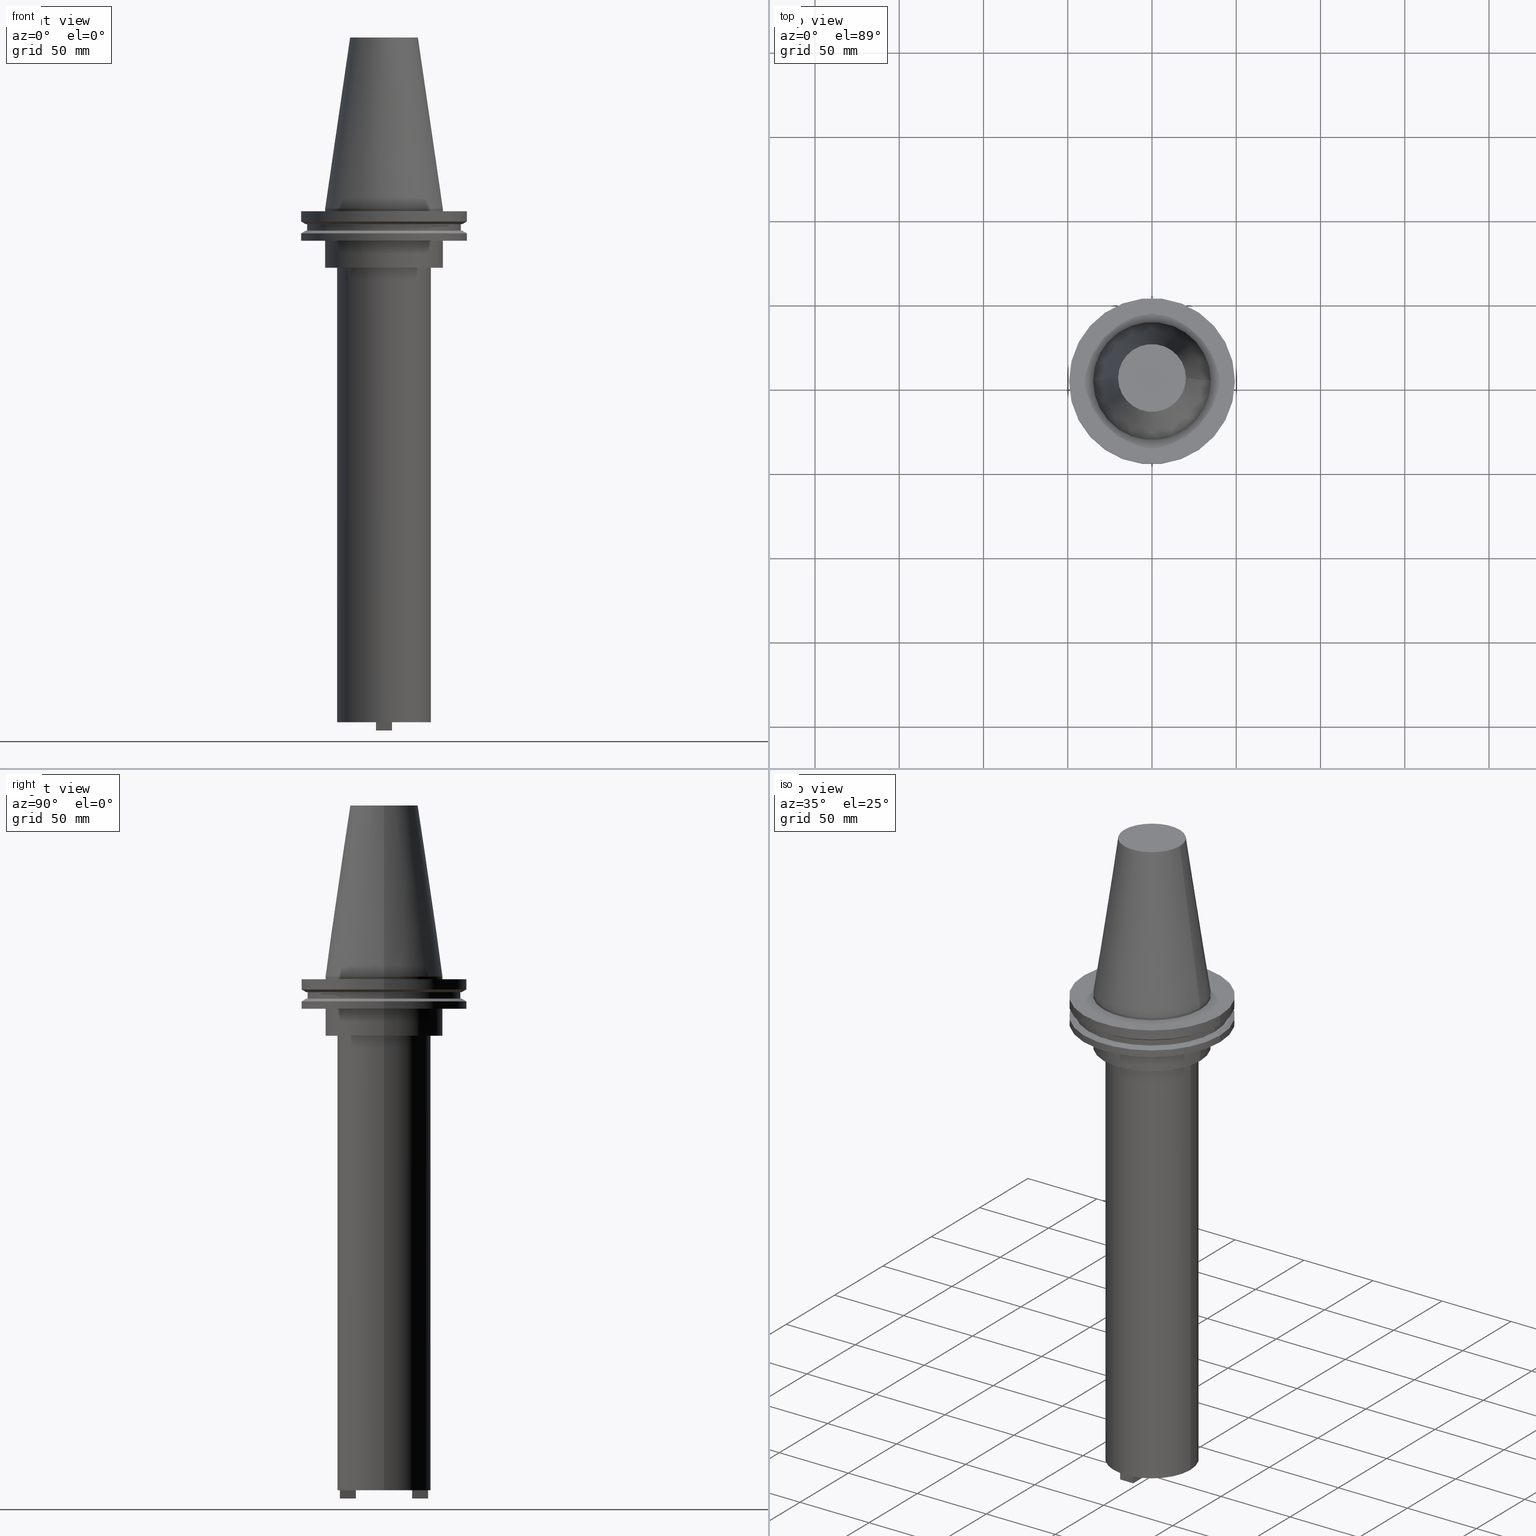
[diagram: canonical four-view strip — front | top / right | iso, engineering-drawing reading convention]
A machine part, canonical four-view strip (front | top / right | iso — engineering-drawing reading convention). The complete STEP part file that produces these views, byte-faithful:
ISO-10303-21;
HEADER;
FILE_DESCRIPTION (( 'STEP AP203' ),
    '1' );
FILE_NAME ('BCV50-SMC1_000-12.stp',
    '2022-03-03T19:55:32',
    ( '' ),
    ( '' ),
    'SwSTEP 2.0',
    'SolidWorks 2021',
    '' );
FILE_SCHEMA (( 'CONFIG_CONTROL_DESIGN' ));
ENDSEC;

DATA;
#1 = VECTOR ( 'NONE', #648, 1000.000000000000000 ) ;
#2 = ORIENTED_EDGE ( 'NONE', *, *, #471, .T. ) ;
#3 = CIRCLE ( 'NONE', #581, 27.80000000000000071 ) ;
#4 = VECTOR ( 'NONE', #315, 1000.000000000000000 ) ;
#5 = EDGE_CURVE ( 'NONE', #638, #869, #733, .T. ) ;
#6 = PERSON_AND_ORGANIZATION ( #969, #861 ) ;
#7 = CARTESIAN_POINT ( 'NONE',  ( 0.000000000000000000, 0.000000000000000000, -35.04999999999999716 ) ) ;
#8 = LINE ( 'NONE', #744, #1073 ) ;
#9 = ORIENTED_EDGE ( 'NONE', *, *, #850, .T. ) ;
#10 = FACE_OUTER_BOUND ( 'NONE', #844, .T. ) ;
#11 = CARTESIAN_POINT ( 'NONE',  ( 0.000000000000000000, 49.21499999999998920, -19.04999999999999716 ) ) ;
#12 = FACE_BOUND ( 'NONE', #235, .T. ) ;
#13 = ORIENTED_EDGE ( 'NONE', *, *, #845, .T. ) ;
#14 = DIRECTION ( 'NONE',  ( 0.000000000000000000, -0.000000000000000000, 1.000000000000000000 ) ) ;
#15 = DIRECTION ( 'NONE',  ( 1.000000000000000000, 0.000000000000000000, 0.000000000000000000 ) ) ;
#16 = EDGE_LOOP ( 'NONE', ( #589, #74, #502, #323 ) ) ;
#17 = AXIS2_PLACEMENT_3D ( 'NONE', #1034, #47, #281 ) ;
#18 = CARTESIAN_POINT ( 'NONE',  ( 4.762500000000000178, -26.20249999999999702, -309.7000000000001023 ) ) ;
#19 = CIRCLE ( 'NONE', #92, 46.43919780457007818 ) ;
#20 = AXIS2_PLACEMENT_3D ( 'NONE', #190, #971, #217 ) ;
#21 = DIRECTION ( 'NONE',  ( -1.000000000000000000, 0.000000000000000000, 0.000000000000000000 ) ) ;
#22 = CARTESIAN_POINT ( 'NONE',  ( 0.000000000000000000, 0.000000000000000000, -13.05499999999999794 ) ) ;
#23 = VERTEX_POINT ( 'NONE', #917 ) ;
#24 = CARTESIAN_POINT ( 'NONE',  ( 45.64500000000000313, 0.000000000000000000, -9.204999999999991189 ) ) ;
#25 = DIRECTION ( 'NONE',  ( 1.000000000000000000, 0.000000000000000000, 0.000000000000000000 ) ) ;
#26 = DIRECTION ( 'NONE',  ( -0.000000000000000000, -0.000000000000000000, 1.000000000000000000 ) ) ;
#27 = ORIENTED_EDGE ( 'NONE', *, *, #690, .T. ) ;
#28 = CARTESIAN_POINT ( 'NONE',  ( 27.80000000000000426, 0.000000000000000000, -35.04999999999999716 ) ) ;
#29 = DIRECTION ( 'NONE',  ( 1.000000000000000000, 0.000000000000000000, 0.000000000000000000 ) ) ;
#30 = ORIENTED_EDGE ( 'NONE', *, *, #665, .T. ) ;
#31 = AXIS2_PLACEMENT_3D ( 'NONE', #350, #533, #925 ) ;
#32 = ADVANCED_FACE ( 'NONE', ( #1077 ), #314, .T. ) ;
#33 = AXIS2_PLACEMENT_3D ( 'NONE', #63, #493, #222 ) ;
#34 = DIRECTION ( 'NONE',  ( -0.000000000000000000, -0.000000000000000000, 1.000000000000000000 ) ) ;
#35 = DIRECTION ( 'NONE',  ( -1.000000000000000000, 0.000000000000000000, 0.000000000000000000 ) ) ;
#36 = ORIENTED_EDGE ( 'NONE', *, *, #54, .T. ) ;
#37 = DIRECTION ( 'NONE',  ( -0.000000000000000000, -0.000000000000000000, 1.000000000000000000 ) ) ;
#38 = ADVANCED_FACE ( 'NONE', ( #903 ), #898, .F. ) ;
#39 = FACE_OUTER_BOUND ( 'NONE', #631, .T. ) ;
#40 = CARTESIAN_POINT ( 'NONE',  ( 0.000000000000000000, 0.000000000000000000, -309.7000000000001023 ) ) ;
#41 = VERTEX_POINT ( 'NONE', #418 ) ;
#42 = LINE ( 'NONE', #802, #173 ) ;
#43 = APPLICATION_CONTEXT ( 'configuration controlled 3d designs of mechanical parts and assemblies' ) ;
#44 = DIRECTION ( 'NONE',  ( -0.000000000000000000, -0.000000000000000000, 1.000000000000000000 ) ) ;
#45 = CARTESIAN_POINT ( 'NONE',  ( 0.000000000000000000, 0.000000000000000000, -9.204999999999991189 ) ) ;
#46 = ORIENTED_EDGE ( 'NONE', *, *, #263, .T. ) ;
#47 = DIRECTION ( 'NONE',  ( -0.000000000000000000, -0.000000000000000000, 1.000000000000000000 ) ) ;
#48 = AXIS2_PLACEMENT_3D ( 'NONE', #1063, #149, #653 ) ;
#49 = DIRECTION ( 'NONE',  ( -0.000000000000000000, 0.000000000000000000, -1.000000000000000000 ) ) ;
#50 = AXIS2_PLACEMENT_3D ( 'NONE', #201, #458, #227 ) ;
#51 = ORIENTED_EDGE ( 'NONE', *, *, #752, .F. ) ;
#52 = LINE ( 'NONE', #983, #473 ) ;
#53 = VECTOR ( 'NONE', #1010, 1000.000000000000000 ) ;
#54 = EDGE_CURVE ( 'NONE', #608, #302, #1065, .T. ) ;
#55 = CIRCLE ( 'NONE', #676, 46.43919780457007818 ) ;
#56 = PRODUCT ( 'BCV50-SMC1_000-12', 'BCV50-SMC1_000-12', '', ( #587 ) ) ;
#57 = ADVANCED_FACE ( 'NONE', ( #908 ), #142, .T. ) ;
#58 = CARTESIAN_POINT ( 'NONE',  ( 0.000000000000000000, 34.92499999999999716, -35.04999999999999716 ) ) ;
#59 = CARTESIAN_POINT ( 'NONE',  ( 4.762500000000000178, 26.20250000000000412, -309.7000000000001023 ) ) ;
#60 = ORIENTED_EDGE ( 'NONE', *, *, #782, .F. ) ;
#61 = DIRECTION ( 'NONE',  ( -0.1443082272672999988, 0.000000000000000000, -0.9895327864921755756 ) ) ;
#62 = ORIENTED_EDGE ( 'NONE', *, *, #5, .T. ) ;
#63 = CARTESIAN_POINT ( 'NONE',  ( 4.762500000000000178, 26.20250000000000412, -309.7000000000001023 ) ) ;
#64 = CALENDAR_DATE ( 2022, 3, 3 ) ;
#65 = VERTEX_POINT ( 'NONE', #357 ) ;
#66 = CARTESIAN_POINT ( 'NONE',  ( 0.000000000000000000, 0.000000000000000000, -35.04999999999999716 ) ) ;
#67 = VERTEX_POINT ( 'NONE', #842 ) ;
#68 = ADVANCED_FACE ( 'NONE', ( #698, #775 ), #940, .F. ) ;
#69 = DIRECTION ( 'NONE',  ( -0.000000000000000000, 1.000000000000000000, -0.000000000000000000 ) ) ;
#70 = DIRECTION ( 'NONE',  ( 1.000000000000000000, 0.000000000000000000, 0.000000000000000000 ) ) ;
#71 = EDGE_LOOP ( 'NONE', ( #766, #168 ) ) ;
#72 = DIRECTION ( 'NONE',  ( -0.8660254037844273833, 1.060575238724893110E-16, 0.5000000000000195399 ) ) ;
#73 = AXIS2_PLACEMENT_3D ( 'NONE', #1038, #210, #702 ) ;
#74 = ORIENTED_EDGE ( 'NONE', *, *, #1024, .T. ) ;
#75 = AXIS2_PLACEMENT_3D ( 'NONE', #1017, #843, #15 ) ;
#76 = CIRCLE ( 'NONE', #208, 27.80000000000000071 ) ;
#77 = CARTESIAN_POINT ( 'NONE',  ( -5.755000000000006111, 7.047842329093025644E-16, -304.8000000000000114 ) ) ;
#78 = VERTEX_POINT ( 'NONE', #257 ) ;
#79 = LINE ( 'NONE', #1013, #689 ) ;
#80 = ORIENTED_EDGE ( 'NONE', *, *, #218, .T. ) ;
#81 = CARTESIAN_POINT ( 'NONE',  ( 4.762500000000000178, -26.20249999999999702, -304.8000000000000682 ) ) ;
#82 = ORIENTED_EDGE ( 'NONE', *, *, #544, .F. ) ;
#83 = CARTESIAN_POINT ( 'NONE',  ( 0.000000000000000000, 0.000000000000000000, -14.65761014474876944 ) ) ;
#84 = ADVANCED_FACE ( 'NONE', ( #275, #936 ), #847, .F. ) ;
#85 = ORIENTED_EDGE ( 'NONE', *, *, #213, .T. ) ;
#86 = EDGE_CURVE ( 'NONE', #479, #114, #381, .T. ) ;
#87 = DIRECTION ( 'NONE',  ( 0.000000000000000000, 0.000000000000000000, 1.000000000000000000 ) ) ;
#88 = DIRECTION ( 'NONE',  ( 1.000000000000000000, 0.000000000000000000, 0.000000000000000000 ) ) ;
#89 = AXIS2_PLACEMENT_3D ( 'NONE', #160, #655, #165 ) ;
#90 = EDGE_LOOP ( 'NONE', ( #1018, #300, #131, #820 ) ) ;
#91 = AXIS2_PLACEMENT_3D ( 'NONE', #390, #396, #736 ) ;
#92 = AXIS2_PLACEMENT_3D ( 'NONE', #1070, #327, #656 ) ;
#93 = CC_DESIGN_APPROVAL ( #442, ( #422 ) ) ;
#94 = CYLINDRICAL_SURFACE ( 'NONE', #943, 45.64500000000000313 ) ;
#95 = CARTESIAN_POINT ( 'NONE',  ( -49.21499999999998920, 6.027099222003697037E-15, 101.5999999999999943 ) ) ;
#96 = EDGE_LOOP ( 'NONE', ( #555, #143, #833, #443 ) ) ;
#97 = LINE ( 'NONE', #600, #510 ) ;
#98 = DIRECTION ( 'NONE',  ( -0.000000000000000000, -0.000000000000000000, 1.000000000000000000 ) ) ;
#99 = VERTEX_POINT ( 'NONE', #679 ) ;
#100 = EDGE_CURVE ( 'NONE', #571, #269, #1032, .T. ) ;
#101 = CARTESIAN_POINT ( 'NONE',  ( -4.762500000000000178, 26.20250000000000412, -309.7000000000001023 ) ) ;
#102 = DIRECTION ( 'NONE',  ( -0.000000000000000000, -0.000000000000000000, 1.000000000000000000 ) ) ;
#103 = EDGE_LOOP ( 'NONE', ( #972, #830, #807, #9 ) ) ;
#104 = EDGE_CURVE ( 'NONE', #23, #359, #839, .T. ) ;
#105 = CIRCLE ( 'NONE', #31, 20.10819343178871321 ) ;
#106 = DIRECTION ( 'NONE',  ( 0.000000000000000000, 0.000000000000000000, -1.000000000000000000 ) ) ;
#107 = AXIS2_PLACEMENT_3D ( 'NONE', #83, #508, #399 ) ;
#108 = SHAPE_DEFINITION_REPRESENTATION ( #478, #1074 ) ;
#109 = CARTESIAN_POINT ( 'NONE',  ( 4.762500000000000178, -16.67749999999999844, -309.7000000000001023 ) ) ;
#110 = DIRECTION ( 'NONE',  ( 1.000000000000000000, 0.000000000000000000, 0.000000000000000000 ) ) ;
#111 = ORIENTED_EDGE ( 'NONE', *, *, #115, .T. ) ;
#112 = DIRECTION ( 'NONE',  ( 1.000000000000000000, 0.000000000000000000, 0.000000000000000000 ) ) ;
#113 = FACE_OUTER_BOUND ( 'NONE', #685, .T. ) ;
#114 = VERTEX_POINT ( 'NONE', #361 ) ;
#115 = EDGE_CURVE ( 'NONE', #677, #891, #1012, .T. ) ;
#116 = FACE_OUTER_BOUND ( 'NONE', #900, .T. ) ;
#117 = LINE ( 'NONE', #711, #1056 ) ;
#118 = ORIENTED_EDGE ( 'NONE', *, *, #54, .F. ) ;
#119 = VERTEX_POINT ( 'NONE', #424 ) ;
#120 = ADVANCED_FACE ( 'NONE', ( #946 ), #872, .T. ) ;
#121 = AXIS2_PLACEMENT_3D ( 'NONE', #779, #536, #365 ) ;
#122 = CIRCLE ( 'NONE', #75, 34.92499999999999005 ) ;
#123 = LINE ( 'NONE', #710, #734 ) ;
#124 = DIRECTION ( 'NONE',  ( 1.000000000000000000, 0.000000000000000000, 0.000000000000000000 ) ) ;
#125 = VERTEX_POINT ( 'NONE', #175 ) ;
#126 = DIRECTION ( 'NONE',  ( -0.000000000000000000, -0.000000000000000000, 1.000000000000000000 ) ) ;
#127 = CARTESIAN_POINT ( 'NONE',  ( 0.000000000000000000, 0.000000000000000000, -14.65761014474876944 ) ) ;
#128 = CARTESIAN_POINT ( 'NONE',  ( 49.21499999999999631, 0.000000000000000000, -1.499999999999987566 ) ) ;
#129 = ORIENTED_EDGE ( 'NONE', *, *, #368, .T. ) ;
#130 = LINE ( 'NONE', #463, #785 ) ;
#131 = ORIENTED_EDGE ( 'NONE', *, *, #169, .F. ) ;
#132 = DIRECTION ( 'NONE',  ( -0.000000000000000000, -0.000000000000000000, 1.000000000000000000 ) ) ;
#133 = FACE_OUTER_BOUND ( 'NONE', #797, .T. ) ;
#134 = ORIENTED_EDGE ( 'NONE', *, *, #552, .F. ) ;
#135 = CARTESIAN_POINT ( 'NONE',  ( -45.64500000000000313, 5.589900314708094957E-15, -13.05499999999999794 ) ) ;
#136 = AXIS2_PLACEMENT_3D ( 'NONE', #331, #1067, #673 ) ;
#137 = DIRECTION ( 'NONE',  ( -1.000000000000000000, 0.000000000000000000, -0.000000000000000000 ) ) ;
#138 = CIRCLE ( 'NONE', #841, 45.64500000000000313 ) ;
#139 = VERTEX_POINT ( 'NONE', #189 ) ;
#140 = CARTESIAN_POINT ( 'NONE',  ( -34.92499999999999005, 0.000000000000000000, 0.000000000000000000 ) ) ;
#141 = CARTESIAN_POINT ( 'NONE',  ( 49.21499999999998920, 6.027099222003697037E-15, -14.65761014474876944 ) ) ;
#142 = CYLINDRICAL_SURFACE ( 'NONE', #911, 34.92499999999999005 ) ;
#143 = ORIENTED_EDGE ( 'NONE', *, *, #193, .T. ) ;
#144 = DIRECTION ( 'NONE',  ( -0.000000000000000000, -0.000000000000000000, 1.000000000000000000 ) ) ;
#145 = APPROVAL_DATE_TIME ( #999, #364 ) ;
#146 = ORIENTED_EDGE ( 'NONE', *, *, #234, .F. ) ;
#147 = CARTESIAN_POINT ( 'NONE',  ( 46.43919780457007818, 0.000000000000000000, -9.204999999999991189 ) ) ;
#148 = ORIENTED_EDGE ( 'NONE', *, *, #395, .T. ) ;
#149 = DIRECTION ( 'NONE',  ( -0.000000000000000000, -0.000000000000000000, 1.000000000000000000 ) ) ;
#150 = PERSON_AND_ORGANIZATION_ROLE ( 'design_owner' ) ;
#151 = VERTEX_POINT ( 'NONE', #693 ) ;
#152 = EDGE_CURVE ( 'NONE', #335, #119, #770, .T. ) ;
#153 = FACE_OUTER_BOUND ( 'NONE', #988, .T. ) ;
#154 = CIRCLE ( 'NONE', #91, 34.92499999999999005 ) ;
#155 = VERTEX_POINT ( 'NONE', #610 ) ;
#156 = AXIS2_PLACEMENT_3D ( 'NONE', #195, #637, #137 ) ;
#157 = CARTESIAN_POINT ( 'NONE',  ( 20.10819343178871321, 3.369811209154858606E-15, 101.5999999999999801 ) ) ;
#158 = PERSON_AND_ORGANIZATION_ROLE ( 'design_supplier' ) ;
#159 = EDGE_CURVE ( 'NONE', #114, #479, #105, .T. ) ;
#160 = CARTESIAN_POINT ( 'NONE',  ( 0.000000000000000000, 0.000000000000000000, 101.5999999999999943 ) ) ;
#161 = DIRECTION ( 'NONE',  ( -0.000000000000000000, -0.000000000000000000, 1.000000000000000000 ) ) ;
#162 = ORIENTED_EDGE ( 'NONE', *, *, #765, .T. ) ;
#163 = DIRECTION ( 'NONE',  ( 0.000000000000000000, 0.000000000000000000, -1.000000000000000000 ) ) ;
#164 = DIRECTION ( 'NONE',  ( 1.000000000000000000, 0.000000000000000000, 0.000000000000000000 ) ) ;
#165 = DIRECTION ( 'NONE',  ( 1.000000000000000000, 0.000000000000000000, 0.000000000000000000 ) ) ;
#166 = DIRECTION ( 'NONE',  ( 1.000000000000000000, 0.000000000000000000, 0.000000000000000000 ) ) ;
#167 = APPROVAL ( #271, 'UNSPECIFIED' ) ;
#168 = ORIENTED_EDGE ( 'NONE', *, *, #104, .T. ) ;
#169 = EDGE_CURVE ( 'NONE', #302, #65, #346, .T. ) ;
#170 = FACE_OUTER_BOUND ( 'NONE', #1011, .T. ) ;
#171 = CARTESIAN_POINT ( 'NONE',  ( 45.64500000000000313, 0.000000000000000000, 101.5999999999999943 ) ) ;
#172 = ORIENTED_EDGE ( 'NONE', *, *, #928, .F. ) ;
#173 = VECTOR ( 'NONE', #1042, 1000.000000000000000 ) ;
#174 = EDGE_CURVE ( 'NONE', #869, #638, #768, .T. ) ;
#175 = CARTESIAN_POINT ( 'NONE',  ( 34.92499999999999716, 0.000000000000000000, -35.04999999999999716 ) ) ;
#176 = CARTESIAN_POINT ( 'NONE',  ( 49.21499999999999631, 0.000000000000000000, 101.5999999999999943 ) ) ;
#177 = VERTEX_POINT ( 'NONE', #757 ) ;
#178 = CARTESIAN_POINT ( 'NONE',  ( 0.000000000000000000, 0.000000000000000000, 101.5999999999999801 ) ) ;
#179 = CARTESIAN_POINT ( 'NONE',  ( 49.21499999999998920, 0.000000000000000000, -19.04999999999999716 ) ) ;
#180 = ADVANCED_FACE ( 'NONE', ( #170 ), #94, .T. ) ;
#181 = VERTEX_POINT ( 'NONE', #267 ) ;
#182 = CARTESIAN_POINT ( 'NONE',  ( -4.762500000000000178, 26.20250000000000412, -309.7000000000001023 ) ) ;
#183 = DIRECTION ( 'NONE',  ( 1.000000000000000000, 0.000000000000000000, 0.000000000000000000 ) ) ;
#184 = DIRECTION ( 'NONE',  ( 0.000000000000000000, 0.000000000000000000, -1.000000000000000000 ) ) ;
#185 = EDGE_LOOP ( 'NONE', ( #283, #27, #812, #691 ) ) ;
#186 = AXIS2_PLACEMENT_3D ( 'NONE', #214, #126, #716 ) ;
#187 = VECTOR ( 'NONE', #578, 1000.000000000000000 ) ;
#188 = CIRCLE ( 'NONE', #475, 34.92499999999999716 ) ;
#189 = CARTESIAN_POINT ( 'NONE',  ( 49.21500000000000341, 0.000000000000000000, -7.602389855251287187 ) ) ;
#190 = CARTESIAN_POINT ( 'NONE',  ( 0.000000000000000000, 0.000000000000000000, 101.5999999999999943 ) ) ;
#191 = EDGE_CURVE ( 'NONE', #230, #259, #97, .T. ) ;
#192 = ORIENTED_EDGE ( 'NONE', *, *, #395, .F. ) ;
#193 = EDGE_CURVE ( 'NONE', #479, #259, #432, .T. ) ;
#194 = CARTESIAN_POINT ( 'NONE',  ( 0.000000000000000000, 0.000000000000000000, 101.5999999999999943 ) ) ;
#195 = CARTESIAN_POINT ( 'NONE',  ( 0.000000000000000000, 20.10819343178871321, 101.5999999999999943 ) ) ;
#196 = CC_DESIGN_DATE_AND_TIME_ASSIGNMENT ( #494, #897, ( #609 ) ) ;
#197 = ORIENTED_EDGE ( 'NONE', *, *, #818, .T. ) ;
#198 = DIRECTION ( 'NONE',  ( 1.000000000000000000, 0.000000000000000000, 0.000000000000000000 ) ) ;
#199 = DIRECTION ( 'NONE',  ( 1.000000000000000000, 0.000000000000000000, -0.000000000000000000 ) ) ;
#200 = ORIENTED_EDGE ( 'NONE', *, *, #464, .T. ) ;
#201 = CARTESIAN_POINT ( 'NONE',  ( 0.000000000000000000, 34.92499999999999716, -35.04999999999999716 ) ) ;
#202 = ADVANCED_FACE ( 'NONE', ( #384 ), #1049, .T. ) ;
#203 = VECTOR ( 'NONE', #377, 1000.000000000000000 ) ;
#204 = AXIS2_PLACEMENT_3D ( 'NONE', #955, #44, #198 ) ;
#205 = VECTOR ( 'NONE', #764, 1000.000000000000000 ) ;
#206 = CARTESIAN_POINT ( 'NONE',  ( 4.762500000000000178, 26.20250000000000412, -309.7000000000001023 ) ) ;
#207 = DIRECTION ( 'NONE',  ( 0.000000000000000000, 0.000000000000000000, -1.000000000000000000 ) ) ;
#208 = AXIS2_PLACEMENT_3D ( 'NONE', #816, #224, #164 ) ;
#209 = VERTEX_POINT ( 'NONE', #720 ) ;
#210 = DIRECTION ( 'NONE',  ( -0.000000000000000000, -0.000000000000000000, 1.000000000000000000 ) ) ;
#211 = CARTESIAN_POINT ( 'NONE',  ( 0.000000000000000000, 0.000000000000000000, -309.7000000000001023 ) ) ;
#212 = ORIENTED_EDGE ( 'NONE', *, *, #330, .F. ) ;
#213 = EDGE_CURVE ( 'NONE', #923, #1003, #970, .T. ) ;
#214 = CARTESIAN_POINT ( 'NONE',  ( 0.000000000000000000, 0.000000000000000000, -9.204999999999991189 ) ) ;
#215 = ORIENTED_EDGE ( 'NONE', *, *, #915, .F. ) ;
#216 = CYLINDRICAL_SURFACE ( 'NONE', #17, 34.92499999999999716 ) ;
#217 = DIRECTION ( 'NONE',  ( 1.000000000000000000, 0.000000000000000000, 0.000000000000000000 ) ) ;
#218 = EDGE_CURVE ( 'NONE', #538, #398, #962, .T. ) ;
#219 = ORIENTED_EDGE ( 'NONE', *, *, #893, .T. ) ;
#220 = CARTESIAN_POINT ( 'NONE',  ( 46.43919780457007818, 0.000000000000000000, -9.204999999999991189 ) ) ;
#221 = AXIS2_PLACEMENT_3D ( 'NONE', #7, #518, #1029 ) ;
#222 = DIRECTION ( 'NONE',  ( 0.000000000000000000, 0.000000000000000000, -1.000000000000000000 ) ) ;
#223 = CIRCLE ( 'NONE', #48, 49.21500000000000341 ) ;
#224 = DIRECTION ( 'NONE',  ( -0.000000000000000000, -0.000000000000000000, 1.000000000000000000 ) ) ;
#225 = AXIS2_PLACEMENT_3D ( 'NONE', #22, #684, #29 ) ;
#226 = ORIENTED_EDGE ( 'NONE', *, *, #850, .F. ) ;
#227 = DIRECTION ( 'NONE',  ( 1.000000000000000000, 0.000000000000000000, 0.000000000000000000 ) ) ;
#228 = ADVANCED_FACE ( 'NONE', ( #455 ), #599, .T. ) ;
#229 = LOCAL_TIME ( 13, 55, 32.00000000000000000, #1087 ) ;
#230 = VERTEX_POINT ( 'NONE', #799 ) ;
#231 = DIRECTION ( 'NONE',  ( -0.000000000000000000, -0.000000000000000000, 1.000000000000000000 ) ) ;
#232 = EDGE_LOOP ( 'NONE', ( #616, #730, #348, #394 ) ) ;
#233 = LINE ( 'NONE', #583, #1005 ) ;
#234 = EDGE_CURVE ( 'NONE', #209, #849, #437, .T. ) ;
#235 = EDGE_LOOP ( 'NONE', ( #773, #573, #567, #426 ) ) ;
#236 = DIRECTION ( 'NONE',  ( -1.000000000000000000, 0.000000000000000000, -0.000000000000000000 ) ) ;
#237 = ORIENTED_EDGE ( 'NONE', *, *, #659, .F. ) ;
#238 = DIRECTION ( 'NONE',  ( -0.000000000000000000, -0.000000000000000000, 1.000000000000000000 ) ) ;
#239 = ORIENTED_EDGE ( 'NONE', *, *, #368, .F. ) ;
#240 = EDGE_CURVE ( 'NONE', #155, #230, #334, .T. ) ;
#241 = LINE ( 'NONE', #580, #717 ) ;
#242 = PERSON_AND_ORGANIZATION ( #969, #861 ) ;
#243 = ORIENTED_EDGE ( 'NONE', *, *, #1028, .F. ) ;
#244 = LINE ( 'NONE', #813, #4 ) ;
#245 = AXIS2_PLACEMENT_3D ( 'NONE', #876, #958, #469 ) ;
#246 = ORIENTED_EDGE ( 'NONE', *, *, #625, .T. ) ;
#247 = VECTOR ( 'NONE', #321, 1000.000000000000000 ) ;
#248 = AXIS2_PLACEMENT_3D ( 'NONE', #370, #800, #124 ) ;
#249 = CC_DESIGN_PERSON_AND_ORGANIZATION_ASSIGNMENT ( #325, #158, ( #422 ) ) ;
#250 = FACE_OUTER_BOUND ( 'NONE', #71, .T. ) ;
#251 = SECURITY_CLASSIFICATION_LEVEL ( 'unclassified' ) ;
#252 = ADVANCED_FACE ( 'NONE', ( #39 ), #216, .T. ) ;
#253 = EDGE_LOOP ( 'NONE', ( #36, #942, #548, #620 ) ) ;
#254 = CARTESIAN_POINT ( 'NONE',  ( -27.80000000000000071, 3.404518101629642167E-15, -304.8000000000000682 ) ) ;
#255 = EDGE_LOOP ( 'NONE', ( #111, #628, #670, #162 ) ) ;
#256 = DATE_TIME_ROLE ( 'classification_date' ) ;
#257 = CARTESIAN_POINT ( 'NONE',  ( -4.762500000000000178, 16.67750000000000554, -304.8000000000000682 ) ) ;
#258 = LINE ( 'NONE', #594, #474 ) ;
#259 = VERTEX_POINT ( 'NONE', #618 ) ;
#260 = DIRECTION ( 'NONE',  ( 1.000000000000000000, 0.000000000000000000, 0.000000000000000000 ) ) ;
#261 = LINE ( 'NONE', #268, #756 ) ;
#262 = VECTOR ( 'NONE', #440, 1000.000000000000000 ) ;
#263 = EDGE_CURVE ( 'NONE', #119, #715, #297, .T. ) ;
#264 = EDGE_LOOP ( 'NONE', ( #1053, #1072, #695, #392 ) ) ;
#265 = CONICAL_SURFACE ( 'NONE', #136, 46.43919780457007818, 1.047197551196575205 ) ;
#266 = AXIS2_PLACEMENT_3D ( 'NONE', #675, #572, #680 ) ;
#267 = CARTESIAN_POINT ( 'NONE',  ( 27.80000000000000071, 0.000000000000000000, -304.8000000000000682 ) ) ;
#268 = CARTESIAN_POINT ( 'NONE',  ( 4.762500000000000178, -26.20249999999999702, -309.7000000000001023 ) ) ;
#269 = VERTEX_POINT ( 'NONE', #28 ) ;
#270 = DIRECTION ( 'NONE',  ( 0.000000000000000000, -0.000000000000000000, 1.000000000000000000 ) ) ;
#271 = APPROVAL_STATUS ( 'not_yet_approved' ) ;
#272 = DIRECTION ( 'NONE',  ( 0.000000000000000000, 0.000000000000000000, -1.000000000000000000 ) ) ;
#273 = DIRECTION ( 'NONE',  ( -0.000000000000000000, -0.000000000000000000, 1.000000000000000000 ) ) ;
#274 = ORIENTED_EDGE ( 'NONE', *, *, #552, .T. ) ;
#275 = FACE_OUTER_BOUND ( 'NONE', #491, .T. ) ;
#276 = CYLINDRICAL_SURFACE ( 'NONE', #20, 49.21499999999998920 ) ;
#277 = ORIENTED_EDGE ( 'NONE', *, *, #240, .F. ) ;
#278 = CLOSED_SHELL ( 'NONE', ( #751, #1045, #57, #322, #389, #870, #997, #32, #292, #120, #796, #588, #1000, #950, #252, #84, #935, #228, #427, #180, #68, #834, #461, #832, #709, #202, #574, #434, #481, #453, #974, #1057, #939, #990, #487, #38, #498, #960 ) ) ;
#279 = AXIS2_PLACEMENT_3D ( 'NONE', #505, #598, #106 ) ;
#280 = AXIS2_PLACEMENT_3D ( 'NONE', #211, #298, #199 ) ;
#281 = DIRECTION ( 'NONE',  ( 1.000000000000000000, 0.000000000000000000, 0.000000000000000000 ) ) ;
#282 = DIRECTION ( 'NONE',  ( 1.000000000000000000, 0.000000000000000000, 0.000000000000000000 ) ) ;
#283 = ORIENTED_EDGE ( 'NONE', *, *, #444, .T. ) ;
#284 = DIRECTION ( 'NONE',  ( 1.000000000000000000, 0.000000000000000000, 0.000000000000000000 ) ) ;
#285 = CARTESIAN_POINT ( 'NONE',  ( -4.762500000000000178, -26.20249999999999702, -309.7000000000001023 ) ) ;
#286 = ORIENTED_EDGE ( 'NONE', *, *, #470, .F. ) ;
#287 = EDGE_CURVE ( 'NONE', #259, #177, #295, .T. ) ;
#288 = DIRECTION ( 'NONE',  ( -0.000000000000000000, -0.000000000000000000, 1.000000000000000000 ) ) ;
#289 = FACE_OUTER_BOUND ( 'NONE', #738, .T. ) ;
#290 = ORIENTED_EDGE ( 'NONE', *, *, #657, .F. ) ;
#291 = CARTESIAN_POINT ( 'NONE',  ( 4.762500000000000178, -26.20249999999999346, -304.8000000000000682 ) ) ;
#292 = ADVANCED_FACE ( 'NONE', ( #116 ), #706, .T. ) ;
#293 = EDGE_LOOP ( 'NONE', ( #80, #129 ) ) ;
#294 = EDGE_CURVE ( 'NONE', #982, #745, #984, .T. ) ;
#295 = CIRCLE ( 'NONE', #769, 34.92499999999999005 ) ;
#296 = CONICAL_SURFACE ( 'NONE', #355, 46.43919780457007818, 1.047197551196575205 ) ;
#297 = LINE ( 'NONE', #621, #632 ) ;
#298 = DIRECTION ( 'NONE',  ( 0.000000000000000000, -0.000000000000000000, 1.000000000000000000 ) ) ;
#299 = AXIS2_PLACEMENT_3D ( 'NONE', #304, #725, #714 ) ;
#300 = ORIENTED_EDGE ( 'NONE', *, *, #329, .F. ) ;
#301 = DIRECTION ( 'NONE',  ( -0.000000000000000000, -0.000000000000000000, 1.000000000000000000 ) ) ;
#302 = VERTEX_POINT ( 'NONE', #558 ) ;
#303 = DIRECTION ( 'NONE',  ( -0.000000000000000000, -0.000000000000000000, 1.000000000000000000 ) ) ;
#304 = CARTESIAN_POINT ( 'NONE',  ( 0.000000000000000000, 0.000000000000000000, -14.65761014474876944 ) ) ;
#305 = ORIENTED_EDGE ( 'NONE', *, *, #1024, .F. ) ;
#306 = FACE_OUTER_BOUND ( 'NONE', #748, .T. ) ;
#307 = DIRECTION ( 'NONE',  ( 1.000000000000000000, 0.000000000000000000, 0.000000000000000000 ) ) ;
#308 = CARTESIAN_POINT ( 'NONE',  ( -4.762500000000000178, -26.20249999999999702, -309.7000000000001023 ) ) ;
#309 = DIRECTION ( 'NONE',  ( -0.000000000000000000, -0.000000000000000000, 1.000000000000000000 ) ) ;
#310 = DIRECTION ( 'NONE',  ( -1.000000000000000000, 0.000000000000000000, 0.000000000000000000 ) ) ;
#311 = VECTOR ( 'NONE', #476, 1000.000000000000000 ) ;
#312 = EDGE_CURVE ( 'NONE', #745, #982, #451, .T. ) ;
#313 = AXIS2_PLACEMENT_3D ( 'NONE', #1026, #98, #347 ) ;
#314 = CYLINDRICAL_SURFACE ( 'NONE', #89, 49.21499999999998920 ) ;
#315 = DIRECTION ( 'NONE',  ( -0.000000000000000000, -0.000000000000000000, 1.000000000000000000 ) ) ;
#316 = APPROVAL_PERSON_ORGANIZATION ( #811, #442, #570 ) ;
#317 = ORIENTED_EDGE ( 'NONE', *, *, #1080, .F. ) ;
#318 = FACE_BOUND ( 'NONE', #504, .T. ) ;
#319 = COORDINATED_UNIVERSAL_TIME_OFFSET ( 6, 0, .BEHIND. ) ;
#320 = CARTESIAN_POINT ( 'NONE',  ( 4.762500000000000178, -26.20249999999999702, -309.7000000000001023 ) ) ;
#321 = DIRECTION ( 'NONE',  ( -0.000000000000000000, -0.000000000000000000, 1.000000000000000000 ) ) ;
#322 = ADVANCED_FACE ( 'NONE', ( #790 ), #466, .T. ) ;
#323 = ORIENTED_EDGE ( 'NONE', *, *, #312, .F. ) ;
#324 = CARTESIAN_POINT ( 'NONE',  ( 0.000000000000000000, 0.000000000000000000, -14.65761014474876944 ) ) ;
#325 = PERSON_AND_ORGANIZATION ( #969, #861 ) ;
#326 = ORIENTED_EDGE ( 'NONE', *, *, #152, .T. ) ;
#327 = DIRECTION ( 'NONE',  ( -0.000000000000000000, -0.000000000000000000, 1.000000000000000000 ) ) ;
#328 = VERTEX_POINT ( 'NONE', #961 ) ;
#329 = EDGE_CURVE ( 'NONE', #65, #484, #867, .T. ) ;
#330 = EDGE_CURVE ( 'NONE', #781, #520, #123, .T. ) ;
#331 = CARTESIAN_POINT ( 'NONE',  ( 0.000000000000000000, 0.000000000000000000, -9.204999999999991189 ) ) ;
#332 = CALENDAR_DATE ( 2022, 3, 3 ) ;
#333 = AXIS2_PLACEMENT_3D ( 'NONE', #525, #428, #25 ) ;
#334 = CIRCLE ( 'NONE', #73, 34.92499999999999005 ) ;
#335 = VERTEX_POINT ( 'NONE', #206 ) ;
#336 = DIRECTION ( 'NONE',  ( -0.000000000000000000, -0.000000000000000000, 1.000000000000000000 ) ) ;
#337 = CIRCLE ( 'NONE', #894, 46.43919780457007818 ) ;
#338 = ORIENTED_EDGE ( 'NONE', *, *, #352, .T. ) ;
#339 = AXIS2_PLACEMENT_3D ( 'NONE', #537, #795, #791 ) ;
#340 = APPROVAL_PERSON_ORGANIZATION ( #605, #167, #682 ) ;
#341 = DIRECTION ( 'NONE',  ( 1.000000000000000000, 0.000000000000000000, 0.000000000000000000 ) ) ;
#342 = DIRECTION ( 'NONE',  ( 1.000000000000000000, 0.000000000000000000, 0.000000000000000000 ) ) ;
#343 = ORIENTED_EDGE ( 'NONE', *, *, #470, .T. ) ;
#344 = PLANE ( 'NONE',  #279 ) ;
#345 = EDGE_CURVE ( 'NONE', #302, #421, #546, .T. ) ;
#346 = LINE ( 'NONE', #109, #262 ) ;
#347 = DIRECTION ( 'NONE',  ( 1.000000000000000000, 0.000000000000000000, 0.000000000000000000 ) ) ;
#348 = ORIENTED_EDGE ( 'NONE', *, *, #778, .T. ) ;
#349 = APPLICATION_CONTEXT ( 'configuration controlled 3d designs of mechanical parts and assemblies' ) ;
#350 = CARTESIAN_POINT ( 'NONE',  ( 0.000000000000000000, 0.000000000000000000, 101.5999999999999801 ) ) ;
#351 = CARTESIAN_POINT ( 'NONE',  ( 0.000000000000000000, 0.000000000000000000, -9.204999999999991189 ) ) ;
#352 = EDGE_CURVE ( 'NONE', #520, #67, #1075, .T. ) ;
#353 = ORIENTED_EDGE ( 'NONE', *, *, #915, .T. ) ;
#354 = VECTOR ( 'NONE', #37, 1000.000000000000000 ) ;
#355 = AXIS2_PLACEMENT_3D ( 'NONE', #351, #446, #771 ) ;
#356 = CC_DESIGN_APPROVAL ( #364, ( #609 ) ) ;
#357 = CARTESIAN_POINT ( 'NONE',  ( 4.762500000000000178, -16.67749999999999844, -309.7000000000001023 ) ) ;
#358 = CARTESIAN_POINT ( 'NONE',  ( 0.000000000000000000, 0.000000000000000000, 101.5999999999999943 ) ) ;
#359 = VERTEX_POINT ( 'NONE', #412 ) ;
#360 = EDGE_CURVE ( 'NONE', #78, #151, #805, .T. ) ;
#361 = CARTESIAN_POINT ( 'NONE',  ( -20.10819343178871321, 0.000000000000000000, 101.5999999999999801 ) ) ;
#362 = CARTESIAN_POINT ( 'NONE',  ( -4.762500000000000178, -26.20249999999999702, -309.7000000000001023 ) ) ;
#363 = ORIENTED_EDGE ( 'NONE', *, *, #191, .T. ) ;
#364 = APPROVAL ( #408, 'UNSPECIFIED' ) ;
#365 = DIRECTION ( 'NONE',  ( 1.000000000000000000, 0.000000000000000000, 0.000000000000000000 ) ) ;
#366 = DIRECTION ( 'NONE',  ( 1.000000000000000000, 0.000000000000000000, 0.000000000000000000 ) ) ;
#367 = ORIENTED_EDGE ( 'NONE', *, *, #852, .F. ) ;
#368 = EDGE_CURVE ( 'NONE', #398, #538, #402, .T. ) ;
#369 = DIRECTION ( 'NONE',  ( 0.000000000000000000, 0.000000000000000000, -1.000000000000000000 ) ) ;
#370 = CARTESIAN_POINT ( 'NONE',  ( 0.000000000000000000, 0.000000000000000000, 0.000000000000000000 ) ) ;
#371 = ORIENTED_EDGE ( 'NONE', *, *, #329, .T. ) ;
#372 = DIRECTION ( 'NONE',  ( -0.000000000000000000, -0.000000000000000000, 1.000000000000000000 ) ) ;
#373 = DIRECTION ( 'NONE',  ( -0.000000000000000000, -0.000000000000000000, 1.000000000000000000 ) ) ;
#374 = CARTESIAN_POINT ( 'NONE',  ( 4.762500000000000178, -26.20249999999999702, -309.7000000000001023 ) ) ;
#375 = ORIENTED_EDGE ( 'NONE', *, *, #752, .T. ) ;
#376 = DIRECTION ( 'NONE',  ( 0.000000000000000000, 1.000000000000000000, 0.000000000000000000 ) ) ;
#377 = DIRECTION ( 'NONE',  ( -0.000000000000000000, -0.000000000000000000, 1.000000000000000000 ) ) ;
#378 = DIRECTION ( 'NONE',  ( -0.000000000000000000, -0.000000000000000000, 1.000000000000000000 ) ) ;
#379 = VERTEX_POINT ( 'NONE', #815 ) ;
#380 = PLANE ( 'NONE',  #50 ) ;
#381 = CIRCLE ( 'NONE', #630, 20.10819343178871321 ) ;
#382 = AXIS2_PLACEMENT_3D ( 'NONE', #11, #14, #183 ) ;
#383 = CIRCLE ( 'NONE', #651, 49.21499999999998920 ) ;
#384 = FACE_OUTER_BOUND ( 'NONE', #662, .T. ) ;
#385 = CARTESIAN_POINT ( 'NONE',  ( 0.000000000000000000, 0.000000000000000000, -13.05499999999999794 ) ) ;
#386 = LOCAL_TIME ( 13, 55, 32.00000000000000000, #319 ) ;
#387 = EDGE_LOOP ( 'NONE', ( #2, #212, #243, #371 ) ) ;
#388 = LINE ( 'NONE', #562, #1071 ) ;
#389 = ADVANCED_FACE ( 'NONE', ( #1086 ), #265, .T. ) ;
#390 = CARTESIAN_POINT ( 'NONE',  ( 0.000000000000000000, 0.000000000000000000, -1.499999999999987566 ) ) ;
#391 = DIRECTION ( 'NONE',  ( -0.000000000000000000, 0.000000000000000000, 1.000000000000000000 ) ) ;
#392 = ORIENTED_EDGE ( 'NONE', *, *, #789, .F. ) ;
#393 = FACE_OUTER_BOUND ( 'NONE', #1069, .T. ) ;
#394 = ORIENTED_EDGE ( 'NONE', *, *, #737, .T. ) ;
#395 = EDGE_CURVE ( 'NONE', #230, #155, #154, .T. ) ;
#396 = DIRECTION ( 'NONE',  ( -0.000000000000000000, -0.000000000000000000, 1.000000000000000000 ) ) ;
#397 = APPROVAL_DATE_TIME ( #413, #442 ) ;
#398 = VERTEX_POINT ( 'NONE', #77 ) ;
#399 = DIRECTION ( 'NONE',  ( 1.000000000000000000, 0.000000000000000000, 0.000000000000000000 ) ) ;
#400 = ORIENTED_EDGE ( 'NONE', *, *, #104, .F. ) ;
#401 = DIRECTION ( 'NONE',  ( -0.000000000000000000, -0.000000000000000000, 1.000000000000000000 ) ) ;
#402 = CIRCLE ( 'NONE', #1033, 5.755000000000006111 ) ;
#403 = VECTOR ( 'NONE', #601, 1000.000000000000000 ) ;
#404 = ORIENTED_EDGE ( 'NONE', *, *, #899, .T. ) ;
#405 = CARTESIAN_POINT ( 'NONE',  ( -49.21499999999998920, 6.027099222003697037E-15, -14.65761014474876944 ) ) ;
#406 = ORIENTED_EDGE ( 'NONE', *, *, #879, .T. ) ;
#407 = LINE ( 'NONE', #141, #543 ) ;
#408 = APPROVAL_STATUS ( 'not_yet_approved' ) ;
#409 = VERTEX_POINT ( 'NONE', #135 ) ;
#410 = FACE_OUTER_BOUND ( 'NONE', #910, .T. ) ;
#411 = ORIENTED_EDGE ( 'NONE', *, *, #191, .F. ) ;
#412 = CARTESIAN_POINT ( 'NONE',  ( -46.43919780457007818, 0.000000000000000000, -13.05499999999999794 ) ) ;
#413 = DATE_AND_TIME ( #64, #532 ) ;
#414 = ORIENTED_EDGE ( 'NONE', *, *, #597, .F. ) ;
#415 = DIRECTION ( 'NONE',  ( -1.000000000000000000, 0.000000000000000000, 0.000000000000000000 ) ) ;
#416 = EDGE_LOOP ( 'NONE', ( #1083, #404, #286, #1060 ) ) ;
#417 = APPLICATION_PROTOCOL_DEFINITION ( 'international standard', 'config_control_design', 1994, #43 ) ;
#418 = CARTESIAN_POINT ( 'NONE',  ( -49.21500000000000341, 6.027099222003699404E-15, -7.602389855251287187 ) ) ;
#419 = CYLINDRICAL_SURFACE ( 'NONE', #452, 34.92499999999999005 ) ;
#420 = CIRCLE ( 'NONE', #107, 49.21499999999998920 ) ;
#421 = VERTEX_POINT ( 'NONE', #979 ) ;
#422 = PRODUCT_DEFINITION_FORMATION_WITH_SPECIFIED_SOURCE ( 'ANY', '', #56, .NOT_KNOWN. ) ;
#423 = EDGE_CURVE ( 'NONE', #23, #827, #407, .T. ) ;
#424 = CARTESIAN_POINT ( 'NONE',  ( 4.762500000000000178, 26.20250000000000412, -304.8000000000000682 ) ) ;
#425 = DIRECTION ( 'NONE',  ( -0.000000000000000000, -0.000000000000000000, 1.000000000000000000 ) ) ;
#426 = ORIENTED_EDGE ( 'NONE', *, *, #604, .F. ) ;
#427 = ADVANCED_FACE ( 'NONE', ( #318, #250 ), #660, .F. ) ;
#428 = DIRECTION ( 'NONE',  ( 0.000000000000000000, -0.000000000000000000, 1.000000000000000000 ) ) ;
#429 = PLANE ( 'NONE',  #718 ) ;
#430 = EDGE_CURVE ( 'NONE', #923, #125, #615, .T. ) ;
#431 = ORIENTED_EDGE ( 'NONE', *, *, #859, .T. ) ;
#432 = LINE ( 'NONE', #626, #650 ) ;
#433 = DIRECTION ( 'NONE',  ( 0.000000000000000000, 0.000000000000000000, -1.000000000000000000 ) ) ;
#434 = ADVANCED_FACE ( 'NONE', ( #906 ), #586, .F. ) ;
#435 = AXIS2_PLACEMENT_3D ( 'NONE', #320, #577, #87 ) ;
#436 = ORIENTED_EDGE ( 'NONE', *, *, #859, .F. ) ;
#437 = CIRCLE ( 'NONE', #840, 5.754999999999994564 ) ;
#438 = AXIS2_PLACEMENT_3D ( 'NONE', #937, #433, #761 ) ;
#439 = AXIS2_PLACEMENT_3D ( 'NONE', #1064, #547, #976 ) ;
#440 = DIRECTION ( 'NONE',  ( 1.000000000000000000, -0.000000000000000000, -0.000000000000000000 ) ) ;
#441 = LINE ( 'NONE', #933, #205 ) ;
#442 = APPROVAL ( #1008, 'UNSPECIFIED' ) ;
#443 = ORIENTED_EDGE ( 'NONE', *, *, #521, .F. ) ;
#444 = EDGE_CURVE ( 'NONE', #139, #41, #223, .T. ) ;
#445 = CARTESIAN_POINT ( 'NONE',  ( -34.92499999999999716, 4.277078946022130887E-15, 101.5999999999999943 ) ) ;
#446 = DIRECTION ( 'NONE',  ( -0.000000000000000000, -0.000000000000000000, 1.000000000000000000 ) ) ;
#447 = ORIENTED_EDGE ( 'NONE', *, *, #701, .F. ) ;
#448 = DIRECTION ( 'NONE',  ( 1.000000000000000000, 0.000000000000000000, 0.000000000000000000 ) ) ;
#449 = PLANE ( 'NONE',  #913 ) ;
#450 = EDGE_LOOP ( 'NONE', ( #60, #541 ) ) ;
#451 = CIRCLE ( 'NONE', #204, 49.21499999999999631 ) ;
#452 = AXIS2_PLACEMENT_3D ( 'NONE', #503, #336, #342 ) ;
#453 = ADVANCED_FACE ( 'NONE', ( #306 ), #646, .F. ) ;
#454 = CC_DESIGN_SECURITY_CLASSIFICATION ( #804, ( #422 ) ) ;
#455 = FACE_OUTER_BOUND ( 'NONE', #232, .T. ) ;
#456 = LINE ( 'NONE', #1044, #545 ) ;
#457 = ORIENTED_EDGE ( 'NONE', *, *, #765, .F. ) ;
#458 = DIRECTION ( 'NONE',  ( 0.000000000000000000, -0.000000000000000000, 1.000000000000000000 ) ) ;
#459 = CARTESIAN_POINT ( 'NONE',  ( 0.000000000000000000, 0.000000000000000000, 0.000000000000000000 ) ) ;
#460 = DIRECTION ( 'NONE',  ( -0.000000000000000000, -0.000000000000000000, 1.000000000000000000 ) ) ;
#461 = ADVANCED_FACE ( 'NONE', ( #1082 ), #986, .T. ) ;
#462 = ORIENTED_EDGE ( 'NONE', *, *, #430, .F. ) ;
#463 = CARTESIAN_POINT ( 'NONE',  ( -4.762500000000000178, -26.20249999999999702, -304.8000000000000682 ) ) ;
#464 = EDGE_CURVE ( 'NONE', #398, #209, #565, .T. ) ;
#465 = ORIENTED_EDGE ( 'NONE', *, *, #767, .F. ) ;
#466 = CYLINDRICAL_SURFACE ( 'NONE', #121, 49.21499999999999631 ) ;
#467 = PLANE ( 'NONE',  #280 ) ;
#468 = VERTEX_POINT ( 'NONE', #488 ) ;
#469 = DIRECTION ( 'NONE',  ( 1.000000000000000000, 0.000000000000000000, 0.000000000000000000 ) ) ;
#470 = EDGE_CURVE ( 'NONE', #827, #726, #383, .T. ) ;
#471 = EDGE_CURVE ( 'NONE', #484, #520, #241, .T. ) ;
#472 = AXIS2_PLACEMENT_3D ( 'NONE', #582, #921, #1088 ) ;
#473 = VECTOR ( 'NONE', #309, 1000.000000000000000 ) ;
#474 = VECTOR ( 'NONE', #926, 1000.000000000000114 ) ;
#475 = AXIS2_PLACEMENT_3D ( 'NONE', #835, #506, #70 ) ;
#476 = DIRECTION ( 'NONE',  ( -0.000000000000000000, -0.000000000000000000, 1.000000000000000000 ) ) ;
#477 = DIRECTION ( 'NONE',  ( -0.000000000000000000, -0.000000000000000000, 1.000000000000000000 ) ) ;
#478 = PRODUCT_DEFINITION_SHAPE ( 'NONE', 'NONE',  #609 ) ;
#479 = VERTEX_POINT ( 'NONE', #157 ) ;
#480 = CC_DESIGN_PERSON_AND_ORGANIZATION_ASSIGNMENT ( #1068, #742, ( #422 ) ) ;
#481 = ADVANCED_FACE ( 'NONE', ( #10 ), #754, .F. ) ;
#482 = DIRECTION ( 'NONE',  ( 0.000000000000000000, -0.000000000000000000, 1.000000000000000000 ) ) ;
#483 = CALENDAR_DATE ( 2022, 3, 3 ) ;
#484 = VERTEX_POINT ( 'NONE', #696 ) ;
#485 = CARTESIAN_POINT ( 'NONE',  ( 0.000000000000000000, 0.000000000000000000, -9.204999999999991189 ) ) ;
#486 = ORIENTED_EDGE ( 'NONE', *, *, #1080, .T. ) ;
#487 = ADVANCED_FACE ( 'NONE', ( #851 ), #344, .F. ) ;
#488 = CARTESIAN_POINT ( 'NONE',  ( -46.43919780457007818, 5.857130358318727293E-15, -9.204999999999991189 ) ) ;
#489 = EDGE_LOOP ( 'NONE', ( #643, #759, #118, #353 ) ) ;
#490 = CARTESIAN_POINT ( 'NONE',  ( -46.43919780457007818, 5.687161494633754392E-15, -9.204999999999991189 ) ) ;
#491 = EDGE_LOOP ( 'NONE', ( #1085, #1001 ) ) ;
#492 = AXIS2_PLACEMENT_3D ( 'NONE', #975, #783, #713 ) ;
#493 = DIRECTION ( 'NONE',  ( 0.000000000000000000, -1.000000000000000000, -0.000000000000000000 ) ) ;
#494 = DATE_AND_TIME ( #566, #1006 ) ;
#495 = ORIENTED_EDGE ( 'NONE', *, *, #100, .F. ) ;
#496 = FACE_OUTER_BOUND ( 'NONE', #515, .T. ) ;
#497 = AXIS2_PLACEMENT_3D ( 'NONE', #40, #49, #721 ) ;
#498 = ADVANCED_FACE ( 'NONE', ( #686 ), #517, .F. ) ;
#499 = ORIENTED_EDGE ( 'NONE', *, *, #767, .T. ) ;
#500 = CARTESIAN_POINT ( 'NONE',  ( -4.762500000000000178, -16.67749999999999844, -309.7000000000001023 ) ) ;
#501 =( NAMED_UNIT ( * ) PLANE_ANGLE_UNIT ( ) SI_UNIT ( $, .RADIAN. ) );
#502 = ORIENTED_EDGE ( 'NONE', *, *, #916, .T. ) ;
#503 = CARTESIAN_POINT ( 'NONE',  ( 0.000000000000000000, 0.000000000000000000, 101.5999999999999943 ) ) ;
#504 = EDGE_LOOP ( 'NONE', ( #367, #436 ) ) ;
#505 = CARTESIAN_POINT ( 'NONE',  ( 4.762500000000000178, -16.67749999999999844, -309.7000000000001023 ) ) ;
#506 = DIRECTION ( 'NONE',  ( -0.000000000000000000, -0.000000000000000000, 1.000000000000000000 ) ) ;
#507 = VERTEX_POINT ( 'NONE', #24 ) ;
#508 = DIRECTION ( 'NONE',  ( -0.000000000000000000, -0.000000000000000000, 1.000000000000000000 ) ) ;
#509 = ORIENTED_EDGE ( 'NONE', *, *, #294, .T. ) ;
#510 = VECTOR ( 'NONE', #853, 1000.000000000000000 ) ;
#511 = AXIS2_PLACEMENT_3D ( 'NONE', #58, #482, #724 ) ;
#512 = CARTESIAN_POINT ( 'NONE',  ( 0.000000000000000000, 0.000000000000000000, 0.000000000000000000 ) ) ;
#513 = CARTESIAN_POINT ( 'NONE',  ( 0.000000000000000000, 0.000000000000000000, -13.05499999999999794 ) ) ;
#514 = CIRCLE ( 'NONE', #313, 5.754999999999994564 ) ;
#515 = EDGE_LOOP ( 'NONE', ( #239, #200, #927, #414 ) ) ;
#516 = CIRCLE ( 'NONE', #339, 49.21500000000000341 ) ;
#517 = PLANE ( 'NONE',  #530 ) ;
#518 = DIRECTION ( 'NONE',  ( 0.000000000000000000, 0.000000000000000000, -1.000000000000000000 ) ) ;
#519 = CARTESIAN_POINT ( 'NONE',  ( 49.21499999999998920, 0.000000000000000000, -14.65761014474876944 ) ) ;
#520 = VERTEX_POINT ( 'NONE', #291 ) ;
#521 = EDGE_CURVE ( 'NONE', #114, #177, #808, .T. ) ;
#522 = DIRECTION ( 'NONE',  ( -0.000000000000000000, -0.000000000000000000, 1.000000000000000000 ) ) ;
#523 = FACE_OUTER_BOUND ( 'NONE', #1047, .T. ) ;
#524 = ORIENTED_EDGE ( 'NONE', *, *, #423, .T. ) ;
#525 = CARTESIAN_POINT ( 'NONE',  ( 0.000000000000000000, 46.43919780457007818, -9.204999999999998295 ) ) ;
#526 = AXIS2_PLACEMENT_3D ( 'NONE', #1025, #613, #683 ) ;
#527 = DIRECTION ( 'NONE',  ( 1.000000000000000000, 0.000000000000000000, 0.000000000000000000 ) ) ;
#528 = VECTOR ( 'NONE', #144, 1000.000000000000000 ) ;
#529 = ORIENTED_EDGE ( 'NONE', *, *, #330, .T. ) ;
#530 = AXIS2_PLACEMENT_3D ( 'NONE', #18, #692, #270 ) ;
#531 = VECTOR ( 'NONE', #102, 1000.000000000000000 ) ;
#532 = LOCAL_TIME ( 13, 55, 32.00000000000000000, #824 ) ;
#533 = DIRECTION ( 'NONE',  ( -0.000000000000000000, -0.000000000000000000, 1.000000000000000000 ) ) ;
#534 = LINE ( 'NONE', #171, #634 ) ;
#535 = EDGE_LOOP ( 'NONE', ( #400, #524, #343, #866 ) ) ;
#536 = DIRECTION ( 'NONE',  ( -0.000000000000000000, -0.000000000000000000, 1.000000000000000000 ) ) ;
#537 = CARTESIAN_POINT ( 'NONE',  ( 0.000000000000000000, 0.000000000000000000, -7.602389855251287187 ) ) ;
#538 = VERTEX_POINT ( 'NONE', #629 ) ;
#539 = CARTESIAN_POINT ( 'NONE',  ( 4.762500000000000178, -16.67749999999999844, -309.7000000000001023 ) ) ;
#540 = CYLINDRICAL_SURFACE ( 'NONE', #248, 27.80000000000000426 ) ;
#541 = ORIENTED_EDGE ( 'NONE', *, *, #640, .F. ) ;
#542 = AXIS2_PLACEMENT_3D ( 'NONE', #606, #760, #112 ) ;
#543 = VECTOR ( 'NONE', #810, 1000.000000000000114 ) ;
#544 = EDGE_CURVE ( 'NONE', #708, #571, #787, .T. ) ;
#545 = VECTOR ( 'NONE', #460, 1000.000000000000000 ) ;
#546 = LINE ( 'NONE', #500, #311 ) ;
#547 = DIRECTION ( 'NONE',  ( 0.000000000000000000, 0.000000000000000000, -1.000000000000000000 ) ) ;
#548 = ORIENTED_EDGE ( 'NONE', *, *, #1028, .T. ) ;
#549 = MANIFOLD_SOLID_BREP ( 'Boss-Extrude1', #278 ) ;
#550 = CARTESIAN_POINT ( 'NONE',  ( -27.80000000000000426, 3.404518101629642562E-15, 0.000000000000000000 ) ) ;
#551 = ORIENTED_EDGE ( 'NONE', *, *, #1081, .T. ) ;
#552 = EDGE_CURVE ( 'NONE', #1003, #328, #929, .T. ) ;
#553 = CARTESIAN_POINT ( 'NONE',  ( 0.000000000000000000, 0.000000000000000000, -1.499999999999987566 ) ) ;
#554 = DIRECTION ( 'NONE',  ( -1.000000000000000000, 0.000000000000000000, -0.000000000000000000 ) ) ;
#555 = ORIENTED_EDGE ( 'NONE', *, *, #86, .F. ) ;
#556 = CARTESIAN_POINT ( 'NONE',  ( -4.762500000000000178, -26.20249999999999702, -309.7000000000001023 ) ) ;
#557 = DESIGN_CONTEXT ( 'detailed design', #43, 'design' ) ;
#558 = CARTESIAN_POINT ( 'NONE',  ( -4.762500000000000178, -16.67749999999999844, -309.7000000000001023 ) ) ;
#559 = PLANE ( 'NONE',  #497 ) ;
#560 = CC_DESIGN_PERSON_AND_ORGANIZATION_ASSIGNMENT ( #242, #747, ( #804 ) ) ;
#561 = EDGE_LOOP ( 'NONE', ( #192, #277 ) ) ;
#562 = CARTESIAN_POINT ( 'NONE',  ( 4.762500000000000178, -16.67749999999999844, -304.8000000000000682 ) ) ;
#563 = EDGE_CURVE ( 'NONE', #125, #328, #42, .T. ) ;
#564 = VECTOR ( 'NONE', #69, 1000.000000000000000 ) ;
#565 = LINE ( 'NONE', #901, #528 ) ;
#566 = CALENDAR_DATE ( 2022, 3, 3 ) ;
#567 = ORIENTED_EDGE ( 'NONE', *, *, #471, .F. ) ;
#568 = EDGE_CURVE ( 'NONE', #67, #421, #130, .T. ) ;
#569 = DIRECTION ( 'NONE',  ( 1.000000000000000000, 0.000000000000000000, 0.000000000000000000 ) ) ;
#570 = APPROVAL_ROLE ( '' ) ;
#571 = VERTEX_POINT ( 'NONE', #644 ) ;
#572 = DIRECTION ( 'NONE',  ( -0.000000000000000000, -0.000000000000000000, 1.000000000000000000 ) ) ;
#573 = ORIENTED_EDGE ( 'NONE', *, *, #352, .F. ) ;
#574 = ADVANCED_FACE ( 'NONE', ( #892 ), #798, .F. ) ;
#575 = DIRECTION ( 'NONE',  ( -0.000000000000000000, -0.000000000000000000, 1.000000000000000000 ) ) ;
#576 = DIRECTION ( 'NONE',  ( 0.000000000000000000, 0.000000000000000000, 1.000000000000000000 ) ) ;
#577 = DIRECTION ( 'NONE',  ( -1.000000000000000000, 0.000000000000000000, 0.000000000000000000 ) ) ;
#578 = DIRECTION ( 'NONE',  ( 1.000000000000000000, -0.000000000000000000, -0.000000000000000000 ) ) ;
#579 = ORIENTED_EDGE ( 'NONE', *, *, #737, .F. ) ;
#580 = CARTESIAN_POINT ( 'NONE',  ( 4.762500000000000178, -26.20249999999999702, -304.8000000000000682 ) ) ;
#581 = AXIS2_PLACEMENT_3D ( 'NONE', #723, #649, #1061 ) ;
#582 = CARTESIAN_POINT ( 'NONE',  ( 0.000000000000000000, 0.000000000000000000, -19.04999999999999716 ) ) ;
#583 = CARTESIAN_POINT ( 'NONE',  ( 4.762500000000000178, 16.67750000000000554, -309.7000000000001023 ) ) ;
#584 = AXIS2_PLACEMENT_3D ( 'NONE', #1051, #987, #661 ) ;
#585 = ORIENTED_EDGE ( 'NONE', *, *, #521, .T. ) ;
#586 = PLANE ( 'NONE',  #511 ) ;
#587 = MECHANICAL_CONTEXT ( 'NONE', #349, 'mechanical' ) ;
#588 = ADVANCED_FACE ( 'NONE', ( #393, #727 ), #380, .F. ) ;
#589 = ORIENTED_EDGE ( 'NONE', *, *, #690, .F. ) ;
#590 = LINE ( 'NONE', #147, #1020 ) ;
#591 = ORIENTED_EDGE ( 'NONE', *, *, #86, .T. ) ;
#592 = CALENDAR_DATE ( 2022, 3, 3 ) ;
#593 = DIRECTION ( 'NONE',  ( -0.000000000000000000, 1.000000000000000000, -0.000000000000000000 ) ) ;
#594 = CARTESIAN_POINT ( 'NONE',  ( -49.21499999999998920, 0.000000000000000000, -14.65761014474876944 ) ) ;
#595 = EDGE_CURVE ( 'NONE', #507, #379, #672, .T. ) ;
#596 = ORIENTED_EDGE ( 'NONE', *, *, #1048, .T. ) ;
#597 = EDGE_CURVE ( 'NONE', #538, #849, #793, .T. ) ;
#598 = DIRECTION ( 'NONE',  ( 0.000000000000000000, -1.000000000000000000, -0.000000000000000000 ) ) ;
#599 = CONICAL_SURFACE ( 'NONE', #1019, 49.21499999999998920, 1.047197551196554333 ) ;
#600 = CARTESIAN_POINT ( 'NONE',  ( 34.92499999999999005, 0.000000000000000000, 101.5999999999999943 ) ) ;
#601 = DIRECTION ( 'NONE',  ( -0.000000000000000000, -0.000000000000000000, 1.000000000000000000 ) ) ;
#602 = CIRCLE ( 'NONE', #225, 45.64500000000000313 ) ;
#603 = ORIENTED_EDGE ( 'NONE', *, *, #845, .F. ) ;
#604 = EDGE_CURVE ( 'NONE', #421, #484, #388, .T. ) ;
#605 = PERSON_AND_ORGANIZATION ( #969, #861 ) ;
#606 = CARTESIAN_POINT ( 'NONE',  ( 0.000000000000000000, 0.000000000000000000, -19.04999999999999716 ) ) ;
#607 = PLANE ( 'NONE',  #438 ) ;
#608 = VERTEX_POINT ( 'NONE', #556 ) ;
#609 = PRODUCT_DEFINITION ( 'UNKNOWN', '', #422, #557 ) ;
#610 = CARTESIAN_POINT ( 'NONE',  ( -34.92499999999999005, 4.277078946022130098E-15, -1.499999999999987566 ) ) ;
#611 = DIRECTION ( 'NONE',  ( -0.000000000000000000, -0.000000000000000000, 1.000000000000000000 ) ) ;
#612 = EDGE_LOOP ( 'NONE', ( #551, #274 ) ) ;
#613 = DIRECTION ( 'NONE',  ( -0.000000000000000000, -0.000000000000000000, 1.000000000000000000 ) ) ;
#614 = CARTESIAN_POINT ( 'NONE',  ( -45.64500000000000313, 5.589900314708094957E-15, 101.5999999999999943 ) ) ;
#615 = CIRCLE ( 'NONE', #874, 34.92499999999999716 ) ;
#616 = ORIENTED_EDGE ( 'NONE', *, *, #423, .F. ) ;
#617 = VECTOR ( 'NONE', #909, 1000.000000000000000 ) ;
#618 = CARTESIAN_POINT ( 'NONE',  ( 34.92499999999999005, 4.277078946022130098E-15, 0.000000000000000000 ) ) ;
#619 = CARTESIAN_POINT ( 'NONE',  ( -4.762500000000000178, 26.20250000000000412, -309.7000000000001023 ) ) ;
#620 = ORIENTED_EDGE ( 'NONE', *, *, #928, .T. ) ;
#621 = CARTESIAN_POINT ( 'NONE',  ( 4.762500000000000178, 26.20250000000000412, -304.8000000000000682 ) ) ;
#622 = FACE_OUTER_BOUND ( 'NONE', #489, .T. ) ;
#623 = VERTEX_POINT ( 'NONE', #220 ) ;
#624 = CARTESIAN_POINT ( 'NONE',  ( 0.000000000000000000, 0.000000000000000000, -19.04999999999999716 ) ) ;
#625 = EDGE_CURVE ( 'NONE', #181, #269, #52, .T. ) ;
#626 = CARTESIAN_POINT ( 'NONE',  ( 34.92499999999999005, 4.277078946022130098E-15, 0.000000000000000000 ) ) ;
#627 = PLANE ( 'NONE',  #584 ) ;
#628 = ORIENTED_EDGE ( 'NONE', *, *, #666, .T. ) ;
#629 = CARTESIAN_POINT ( 'NONE',  ( 5.755000000000006111, 0.000000000000000000, -304.8000000000000114 ) ) ;
#630 = AXIS2_PLACEMENT_3D ( 'NONE', #178, #932, #341 ) ;
#631 = EDGE_LOOP ( 'NONE', ( #1027, #954, #888, #134 ) ) ;
#632 = VECTOR ( 'NONE', #952, 1000.000000000000000 ) ;
#633 = EDGE_CURVE ( 'NONE', #181, #708, #3, .T. ) ;
#634 = VECTOR ( 'NONE', #864, 1000.000000000000000 ) ;
#635 = AXIS2_PLACEMENT_3D ( 'NONE', #45, #378, #890 ) ;
#636 = DIRECTION ( 'NONE',  ( 1.000000000000000000, 0.000000000000000000, 0.000000000000000000 ) ) ;
#637 = DIRECTION ( 'NONE',  ( 0.000000000000000000, 0.000000000000000000, -1.000000000000000000 ) ) ;
#638 = VERTEX_POINT ( 'NONE', #978 ) ;
#639 = CC_DESIGN_PERSON_AND_ORGANIZATION_ASSIGNMENT ( #6, #902, ( #609 ) ) ;
#640 = EDGE_CURVE ( 'NONE', #468, #623, #337, .T. ) ;
#641 = DIRECTION ( 'NONE',  ( 0.1443082272672999988, 1.767266086135277066E-17, -0.9895327864921755756 ) ) ;
#642 = FACE_OUTER_BOUND ( 'NONE', #681, .T. ) ;
#643 = ORIENTED_EDGE ( 'NONE', *, *, #568, .T. ) ;
#644 = CARTESIAN_POINT ( 'NONE',  ( -27.80000000000000426, 3.404518101629642562E-15, -35.04999999999999716 ) ) ;
#645 = UNCERTAINTY_MEASURE_WITH_UNIT (LENGTH_MEASURE( 1.000000000000000082E-05 ), #654, 'distance_accuracy_value', 'NONE');
#646 = PLANE ( 'NONE',  #33 ) ;
#647 = PERSON_AND_ORGANIZATION ( #969, #861 ) ;
#648 = DIRECTION ( 'NONE',  ( 0.000000000000000000, 1.000000000000000000, 0.000000000000000000 ) ) ;
#649 = DIRECTION ( 'NONE',  ( -0.000000000000000000, -0.000000000000000000, 1.000000000000000000 ) ) ;
#650 = VECTOR ( 'NONE', #641, 999.9999999999998863 ) ;
#651 = AXIS2_PLACEMENT_3D ( 'NONE', #324, #667, #998 ) ;
#652 = CIRCLE ( 'NONE', #930, 27.80000000000000426 ) ;
#653 = DIRECTION ( 'NONE',  ( 1.000000000000000000, 0.000000000000000000, 0.000000000000000000 ) ) ;
#654 =( LENGTH_UNIT ( ) NAMED_UNIT ( * ) SI_UNIT ( .MILLI., .METRE. ) );
#655 = DIRECTION ( 'NONE',  ( -0.000000000000000000, -0.000000000000000000, 1.000000000000000000 ) ) ;
#656 = DIRECTION ( 'NONE',  ( 1.000000000000000000, 0.000000000000000000, 0.000000000000000000 ) ) ;
#657 = EDGE_CURVE ( 'NONE', #155, #177, #819, .T. ) ;
#658 = ORIENTED_EDGE ( 'NONE', *, *, #1081, .F. ) ;
#659 = EDGE_CURVE ( 'NONE', #468, #41, #663, .T. ) ;
#660 = PLANE ( 'NONE',  #912 ) ;
#661 = DIRECTION ( 'NONE',  ( 0.000000000000000000, -0.000000000000000000, 1.000000000000000000 ) ) ;
#662 = EDGE_LOOP ( 'NONE', ( #82, #486, #246, #219 ) ) ;
#663 = LINE ( 'NONE', #490, #772 ) ;
#664 = ORIENTED_EDGE ( 'NONE', *, *, #899, .F. ) ;
#665 = EDGE_CURVE ( 'NONE', #99, #715, #233, .T. ) ;
#666 = EDGE_CURVE ( 'NONE', #891, #335, #837, .T. ) ;
#667 = DIRECTION ( 'NONE',  ( -0.000000000000000000, -0.000000000000000000, 1.000000000000000000 ) ) ;
#668 = ORIENTED_EDGE ( 'NONE', *, *, #701, .T. ) ;
#669 = CARTESIAN_POINT ( 'NONE',  ( -34.92499999999999005, 4.277078946022130098E-15, 101.5999999999999943 ) ) ;
#670 = ORIENTED_EDGE ( 'NONE', *, *, #883, .T. ) ;
#671 = VECTOR ( 'NONE', #522, 1000.000000000000000 ) ;
#672 = CIRCLE ( 'NONE', #186, 45.64500000000000313 ) ;
#673 = DIRECTION ( 'NONE',  ( 1.000000000000000000, 0.000000000000000000, 0.000000000000000000 ) ) ;
#674 = ORIENTED_EDGE ( 'NONE', *, *, #782, .T. ) ;
#675 = CARTESIAN_POINT ( 'NONE',  ( 0.000000000000000000, 0.000000000000000000, 0.000000000000000000 ) ) ;
#676 = AXIS2_PLACEMENT_3D ( 'NONE', #385, #477, #307 ) ;
#677 = VERTEX_POINT ( 'NONE', #758 ) ;
#678 = DATE_AND_TIME ( #332, #229 ) ;
#679 = CARTESIAN_POINT ( 'NONE',  ( 4.762500000000000178, 16.67750000000000554, -309.7000000000001023 ) ) ;
#680 = DIRECTION ( 'NONE',  ( 1.000000000000000000, 0.000000000000000000, 0.000000000000000000 ) ) ;
#681 = EDGE_LOOP ( 'NONE', ( #882, #777, #585, #406 ) ) ;
#682 = APPROVAL_ROLE ( '' ) ;
#683 = DIRECTION ( 'NONE',  ( 1.000000000000000000, 0.000000000000000000, 0.000000000000000000 ) ) ;
#684 = DIRECTION ( 'NONE',  ( -0.000000000000000000, -0.000000000000000000, 1.000000000000000000 ) ) ;
#685 = EDGE_LOOP ( 'NONE', ( #509, #700 ) ) ;
#686 = FACE_OUTER_BOUND ( 'NONE', #875, .T. ) ;
#687 = DIRECTION ( 'NONE',  ( -0.000000000000000000, -0.000000000000000000, 1.000000000000000000 ) ) ;
#688 = LINE ( 'NONE', #95, #735 ) ;
#689 = VECTOR ( 'NONE', #415, 1000.000000000000000 ) ;
#690 = EDGE_CURVE ( 'NONE', #41, #745, #244, .T. ) ;
#691 = ORIENTED_EDGE ( 'NONE', *, *, #916, .F. ) ;
#692 = DIRECTION ( 'NONE',  ( 0.000000000000000000, 1.000000000000000000, 0.000000000000000000 ) ) ;
#693 = CARTESIAN_POINT ( 'NONE',  ( -4.762500000000000178, 26.20250000000000412, -304.8000000000000682 ) ) ;
#694 = FACE_BOUND ( 'NONE', #561, .T. ) ;
#695 = ORIENTED_EDGE ( 'NONE', *, *, #263, .F. ) ;
#696 = CARTESIAN_POINT ( 'NONE',  ( 4.762500000000000178, -16.67750000000000199, -304.8000000000000682 ) ) ;
#697 = EDGE_CURVE ( 'NONE', #677, #78, #8, .T. ) ;
#698 = FACE_OUTER_BOUND ( 'NONE', #450, .T. ) ;
#699 = DIRECTION ( 'NONE',  ( -1.000000000000000000, 0.000000000000000000, 0.000000000000000000 ) ) ;
#700 = ORIENTED_EDGE ( 'NONE', *, *, #312, .T. ) ;
#701 = EDGE_CURVE ( 'NONE', #125, #923, #945, .T. ) ;
#702 = DIRECTION ( 'NONE',  ( 1.000000000000000000, 0.000000000000000000, 0.000000000000000000 ) ) ;
#703 = FACE_OUTER_BOUND ( 'NONE', #855, .T. ) ;
#704 = AXIS2_PLACEMENT_3D ( 'NONE', #823, #231, #569 ) ;
#705 = ORIENTED_EDGE ( 'NONE', *, *, #544, .T. ) ;
#706 = CYLINDRICAL_SURFACE ( 'NONE', #944, 34.92499999999999716 ) ;
#707 = PLANE ( 'NONE',  #156 ) ;
#708 = VERTEX_POINT ( 'NONE', #254 ) ;
#709 = ADVANCED_FACE ( 'NONE', ( #153 ), #419, .T. ) ;
#710 = CARTESIAN_POINT ( 'NONE',  ( 4.762500000000000178, -26.20249999999999702, -309.7000000000001023 ) ) ;
#711 = CARTESIAN_POINT ( 'NONE',  ( 4.762500000000000178, 16.67750000000000554, -304.8000000000000682 ) ) ;
#712 = ORIENTED_EDGE ( 'NONE', *, *, #883, .F. ) ;
#713 = DIRECTION ( 'NONE',  ( 1.000000000000000000, 0.000000000000000000, 0.000000000000000000 ) ) ;
#714 = DIRECTION ( 'NONE',  ( -1.000000000000000000, 0.000000000000000000, 0.000000000000000000 ) ) ;
#715 = VERTEX_POINT ( 'NONE', #831 ) ;
#716 = DIRECTION ( 'NONE',  ( 1.000000000000000000, 0.000000000000000000, 0.000000000000000000 ) ) ;
#717 = VECTOR ( 'NONE', #914, 1000.000000000000000 ) ;
#718 = AXIS2_PLACEMENT_3D ( 'NONE', #854, #780, #110 ) ;
#719 = AXIS2_PLACEMENT_3D ( 'NONE', #993, #576, #755 ) ;
#720 = CARTESIAN_POINT ( 'NONE',  ( -5.754999999999994564, 7.047842329093010853E-16, -35.04999999999999716 ) ) ;
#721 = DIRECTION ( 'NONE',  ( -1.000000000000000000, 0.000000000000000000, 0.000000000000000000 ) ) ;
#722 = ORIENTED_EDGE ( 'NONE', *, *, #949, .F. ) ;
#723 = CARTESIAN_POINT ( 'NONE',  ( 0.000000000000000000, 0.000000000000000000, -304.8000000000000682 ) ) ;
#724 = DIRECTION ( 'NONE',  ( 1.000000000000000000, 0.000000000000000000, 0.000000000000000000 ) ) ;
#725 = DIRECTION ( 'NONE',  ( 0.000000000000000000, 0.000000000000000000, -1.000000000000000000 ) ) ;
#726 = VERTEX_POINT ( 'NONE', #405 ) ;
#727 = FACE_BOUND ( 'NONE', #1037, .T. ) ;
#728 = CARTESIAN_POINT ( 'NONE',  ( 0.000000000000000000, 0.000000000000000000, -35.04999999999999716 ) ) ;
#729 = APPROVAL_ROLE ( '' ) ;
#730 = ORIENTED_EDGE ( 'NONE', *, *, #959, .F. ) ;
#731 = CARTESIAN_POINT ( 'NONE',  ( 4.762500000000000178, -26.20249999999999702, -309.7000000000001023 ) ) ;
#732 = ORIENTED_EDGE ( 'NONE', *, *, #852, .T. ) ;
#733 = CIRCLE ( 'NONE', #472, 49.21499999999998920 ) ;
#734 = VECTOR ( 'NONE', #288, 1000.000000000000000 ) ;
#735 = VECTOR ( 'NONE', #26, 1000.000000000000000 ) ;
#736 = DIRECTION ( 'NONE',  ( 1.000000000000000000, 0.000000000000000000, 0.000000000000000000 ) ) ;
#737 = EDGE_CURVE ( 'NONE', #726, #827, #420, .T. ) ;
#738 = EDGE_LOOP ( 'NONE', ( #786, #860, #457, #30 ) ) ;
#739 = DIRECTION ( 'NONE',  ( 0.8660254037844273833, 0.000000000000000000, 0.5000000000000195399 ) ) ;
#740 = ORIENTED_EDGE ( 'NONE', *, *, #657, .T. ) ;
#741 = DIRECTION ( 'NONE',  ( 1.000000000000000000, 0.000000000000000000, 0.000000000000000000 ) ) ;
#742 = PERSON_AND_ORGANIZATION_ROLE ( 'creator' ) ;
#743 = EDGE_LOOP ( 'NONE', ( #148, #740, #1031, #411 ) ) ;
#744 = CARTESIAN_POINT ( 'NONE',  ( -4.762500000000000178, 16.67750000000000554, -309.7000000000001023 ) ) ;
#745 = VERTEX_POINT ( 'NONE', #904 ) ;
#746 = CARTESIAN_POINT ( 'NONE',  ( -4.762500000000000178, 26.20250000000000412, -304.8000000000000682 ) ) ;
#747 = PERSON_AND_ORGANIZATION_ROLE ( 'classification_officer' ) ;
#748 = EDGE_LOOP ( 'NONE', ( #973, #792, #1079, #499 ) ) ;
#749 = CYLINDRICAL_SURFACE ( 'NONE', #266, 5.754999999999994564 ) ;
#750 = ORIENTED_EDGE ( 'NONE', *, *, #633, .T. ) ;
#751 = ADVANCED_FACE ( 'NONE', ( #496 ), #749, .F. ) ;
#752 = EDGE_CURVE ( 'NONE', #623, #139, #590, .T. ) ;
#753 = AXIS2_PLACEMENT_3D ( 'NONE', #182, #924, #163 ) ;
#754 = PLANE ( 'NONE',  #753 ) ;
#755 = DIRECTION ( 'NONE',  ( 1.000000000000000000, 0.000000000000000000, 0.000000000000000000 ) ) ;
#756 = VECTOR ( 'NONE', #699, 1000.000000000000000 ) ;
#757 = CARTESIAN_POINT ( 'NONE',  ( -34.92499999999999005, 0.000000000000000000, 0.000000000000000000 ) ) ;
#758 = CARTESIAN_POINT ( 'NONE',  ( -4.762500000000000178, 16.67750000000000554, -309.7000000000001023 ) ) ;
#759 = ORIENTED_EDGE ( 'NONE', *, *, #345, .F. ) ;
#760 = DIRECTION ( 'NONE',  ( -0.000000000000000000, -0.000000000000000000, 1.000000000000000000 ) ) ;
#761 = DIRECTION ( 'NONE',  ( -1.000000000000000000, 0.000000000000000000, -0.000000000000000000 ) ) ;
#762 = ORIENTED_EDGE ( 'NONE', *, *, #697, .T. ) ;
#763 = CARTESIAN_POINT ( 'NONE',  ( 0.000000000000000000, 0.000000000000000000, 101.5999999999999943 ) ) ;
#764 = DIRECTION ( 'NONE',  ( 0.000000000000000000, -1.000000000000000000, 0.000000000000000000 ) ) ;
#765 = EDGE_CURVE ( 'NONE', #99, #677, #79, .T. ) ;
#766 = ORIENTED_EDGE ( 'NONE', *, *, #959, .T. ) ;
#767 = EDGE_CURVE ( 'NONE', #891, #151, #922, .T. ) ;
#768 = CIRCLE ( 'NONE', #542, 49.21499999999998920 ) ;
#769 = AXIS2_PLACEMENT_3D ( 'NONE', #459, #132, #636 ) ;
#770 = LINE ( 'NONE', #857, #671 ) ;
#771 = DIRECTION ( 'NONE',  ( 1.000000000000000000, 0.000000000000000000, 0.000000000000000000 ) ) ;
#772 = VECTOR ( 'NONE', #72, 1000.000000000000000 ) ;
#773 = ORIENTED_EDGE ( 'NONE', *, *, #568, .F. ) ;
#774 = AXIS2_PLACEMENT_3D ( 'NONE', #59, #554, #391 ) ;
#775 = FACE_BOUND ( 'NONE', #951, .T. ) ;
#776 = CARTESIAN_POINT ( 'NONE',  ( 0.000000000000000000, 0.000000000000000000, -35.04999999999999716 ) ) ;
#777 = ORIENTED_EDGE ( 'NONE', *, *, #159, .F. ) ;
#778 = EDGE_CURVE ( 'NONE', #359, #726, #258, .T. ) ;
#779 = CARTESIAN_POINT ( 'NONE',  ( 0.000000000000000000, 0.000000000000000000, 101.5999999999999943 ) ) ;
#780 = DIRECTION ( 'NONE',  ( 0.000000000000000000, -0.000000000000000000, 1.000000000000000000 ) ) ;
#781 = VERTEX_POINT ( 'NONE', #731 ) ;
#782 = EDGE_CURVE ( 'NONE', #623, #468, #19, .T. ) ;
#783 = DIRECTION ( 'NONE',  ( -0.000000000000000000, -0.000000000000000000, 1.000000000000000000 ) ) ;
#784 = FACE_OUTER_BOUND ( 'NONE', #991, .T. ) ;
#785 = VECTOR ( 'NONE', #376, 1000.000000000000000 ) ;
#786 = ORIENTED_EDGE ( 'NONE', *, *, #1040, .T. ) ;
#787 = LINE ( 'NONE', #550, #354 ) ;
#788 = VECTOR ( 'NONE', #881, 1000.000000000000000 ) ;
#789 = EDGE_CURVE ( 'NONE', #151, #119, #989, .T. ) ;
#790 = FACE_OUTER_BOUND ( 'NONE', #185, .T. ) ;
#791 = DIRECTION ( 'NONE',  ( 1.000000000000000000, 0.000000000000000000, 0.000000000000000000 ) ) ;
#792 = ORIENTED_EDGE ( 'NONE', *, *, #152, .F. ) ;
#793 = LINE ( 'NONE', #1054, #803 ) ;
#794 = CARTESIAN_POINT ( 'NONE',  ( 0.000000000000000000, 0.000000000000000000, 0.000000000000000000 ) ) ;
#795 = DIRECTION ( 'NONE',  ( -0.000000000000000000, -0.000000000000000000, 1.000000000000000000 ) ) ;
#796 = ADVANCED_FACE ( 'NONE', ( #826, #410, #1002, #12 ), #429, .F. ) ;
#797 = EDGE_LOOP ( 'NONE', ( #750, #705, #965, #838 ) ) ;
#798 = CYLINDRICAL_SURFACE ( 'NONE', #245, 5.754999999999994564 ) ;
#799 = CARTESIAN_POINT ( 'NONE',  ( 34.92499999999999005, 0.000000000000000000, -1.499999999999987566 ) ) ;
#800 = DIRECTION ( 'NONE',  ( -0.000000000000000000, -0.000000000000000000, 1.000000000000000000 ) ) ;
#801 = ORIENTED_EDGE ( 'NONE', *, *, #563, .F. ) ;
#802 = CARTESIAN_POINT ( 'NONE',  ( 34.92499999999999716, 0.000000000000000000, 101.5999999999999943 ) ) ;
#803 = VECTOR ( 'NONE', #301, 1000.000000000000000 ) ;
#804 = SECURITY_CLASSIFICATION ( '', '', #251 ) ;
#805 = LINE ( 'NONE', #746, #564 ) ;
#806 = FACE_OUTER_BOUND ( 'NONE', #253, .T. ) ;
#807 = ORIENTED_EDGE ( 'NONE', *, *, #597, .T. ) ;
#808 = LINE ( 'NONE', #140, #822 ) ;
#809 = ORIENTED_EDGE ( 'NONE', *, *, #633, .F. ) ;
#810 = DIRECTION ( 'NONE',  ( 0.8660254037844169472, 1.060575238724880168E-16, -0.5000000000000375255 ) ) ;
#811 = PERSON_AND_ORGANIZATION ( #969, #861 ) ;
#812 = ORIENTED_EDGE ( 'NONE', *, *, #294, .F. ) ;
#813 = CARTESIAN_POINT ( 'NONE',  ( -49.21499999999999631, 6.027099222003697826E-15, 101.5999999999999943 ) ) ;
#814 = ORIENTED_EDGE ( 'NONE', *, *, #818, .F. ) ;
#815 = CARTESIAN_POINT ( 'NONE',  ( -45.64500000000000313, 5.589900314708094957E-15, -9.204999999999991189 ) ) ;
#816 = CARTESIAN_POINT ( 'NONE',  ( 0.000000000000000000, 0.000000000000000000, -304.8000000000000682 ) ) ;
#817 = ORIENTED_EDGE ( 'NONE', *, *, #893, .F. ) ;
#818 = EDGE_CURVE ( 'NONE', #996, #507, #534, .T. ) ;
#819 = LINE ( 'NONE', #669, #53 ) ;
#820 = ORIENTED_EDGE ( 'NONE', *, *, #345, .T. ) ;
#821 = AXIS2_PLACEMENT_3D ( 'NONE', #794, #880, #448 ) ;
#822 = VECTOR ( 'NONE', #61, 999.9999999999998863 ) ;
#823 = CARTESIAN_POINT ( 'NONE',  ( 0.000000000000000000, 0.000000000000000000, 101.5999999999999943 ) ) ;
#824 = COORDINATED_UNIVERSAL_TIME_OFFSET ( 6, 0, .BEHIND. ) ;
#825 = EDGE_LOOP ( 'NONE', ( #885, #591 ) ) ;
#826 = FACE_BOUND ( 'NONE', #264, .T. ) ;
#827 = VERTEX_POINT ( 'NONE', #519 ) ;
#828 = CARTESIAN_POINT ( 'NONE',  ( 0.000000000000000000, 0.000000000000000000, -304.8000000000000114 ) ) ;
#829 = COORDINATED_UNIVERSAL_TIME_OFFSET ( 6, 0, .BEHIND. ) ;
#830 = ORIENTED_EDGE ( 'NONE', *, *, #218, .F. ) ;
#831 = CARTESIAN_POINT ( 'NONE',  ( 4.762500000000000178, 16.67750000000000554, -304.8000000000000682 ) ) ;
#832 = ADVANCED_FACE ( 'NONE', ( #694, #113 ), #607, .F. ) ;
#833 = ORIENTED_EDGE ( 'NONE', *, *, #287, .T. ) ;
#834 = ADVANCED_FACE ( 'NONE', ( #1035 ), #296, .T. ) ;
#835 = CARTESIAN_POINT ( 'NONE',  ( 0.000000000000000000, 0.000000000000000000, -19.04999999999999716 ) ) ;
#836 = ORIENTED_EDGE ( 'NONE', *, *, #115, .F. ) ;
#837 = LINE ( 'NONE', #1089, #187 ) ;
#838 = ORIENTED_EDGE ( 'NONE', *, *, #625, .F. ) ;
#839 = CIRCLE ( 'NONE', #526, 46.43919780457007818 ) ;
#840 = AXIS2_PLACEMENT_3D ( 'NONE', #889, #34, #1058 ) ;
#841 = AXIS2_PLACEMENT_3D ( 'NONE', #513, #611, #366 ) ;
#842 = CARTESIAN_POINT ( 'NONE',  ( -4.762500000000000178, -26.20249999999999702, -304.8000000000000682 ) ) ;
#843 = DIRECTION ( 'NONE',  ( -0.000000000000000000, -0.000000000000000000, 1.000000000000000000 ) ) ;
#844 = EDGE_LOOP ( 'NONE', ( #1009, #465, #836, #762 ) ) ;
#845 = EDGE_CURVE ( 'NONE', #409, #379, #941, .T. ) ;
#846 = DATE_AND_TIME ( #592, #985 ) ;
#847 = PLANE ( 'NONE',  #382 ) ;
#848 = CARTESIAN_POINT ( 'NONE',  ( 5.754999999999994564, 0.000000000000000000, -35.04999999999999716 ) ) ;
#849 = VERTEX_POINT ( 'NONE', #848 ) ;
#850 = EDGE_CURVE ( 'NONE', #849, #209, #514, .T. ) ;
#851 = FACE_OUTER_BOUND ( 'NONE', #90, .T. ) ;
#852 = EDGE_CURVE ( 'NONE', #996, #409, #602, .T. ) ;
#853 = DIRECTION ( 'NONE',  ( -0.000000000000000000, -0.000000000000000000, 1.000000000000000000 ) ) ;
#854 = CARTESIAN_POINT ( 'NONE',  ( 0.000000000000000000, 27.80000000000000071, -304.8000000000000682 ) ) ;
#855 = EDGE_LOOP ( 'NONE', ( #732, #13, #938, #814 ) ) ;
#856 = AXIS2_PLACEMENT_3D ( 'NONE', #553, #303, #284 ) ;
#857 = CARTESIAN_POINT ( 'NONE',  ( 4.762500000000000178, 26.20250000000000412, -309.7000000000001023 ) ) ;
#858 = CYLINDRICAL_SURFACE ( 'NONE', #966, 45.64500000000000313 ) ;
#859 = EDGE_CURVE ( 'NONE', #409, #996, #138, .T. ) ;
#860 = ORIENTED_EDGE ( 'NONE', *, *, #697, .F. ) ;
#861 = ORGANIZATION ( 'UNSPECIFIED', 'UNSPECIFIED', '' ) ;
#862 = APPROVAL_DATE_TIME ( #846, #167 ) ;
#863 = DIRECTION ( 'NONE',  ( 1.000000000000000000, 0.000000000000000000, 0.000000000000000000 ) ) ;
#864 = DIRECTION ( 'NONE',  ( -0.000000000000000000, -0.000000000000000000, 1.000000000000000000 ) ) ;
#865 = CC_DESIGN_PERSON_AND_ORGANIZATION_ASSIGNMENT ( #1076, #150, ( #56 ) ) ;
#866 = ORIENTED_EDGE ( 'NONE', *, *, #778, .F. ) ;
#867 = LINE ( 'NONE', #539, #1052 ) ;
#868 = LINE ( 'NONE', #374, #788 ) ;
#869 = VERTEX_POINT ( 'NONE', #179 ) ;
#870 = ADVANCED_FACE ( 'NONE', ( #703 ), #858, .T. ) ;
#871 = DIRECTION ( 'NONE',  ( -0.000000000000000000, -0.000000000000000000, 1.000000000000000000 ) ) ;
#872 = CONICAL_SURFACE ( 'NONE', #981, 34.92499999999999005, 0.1448138465474119452 ) ;
#873 = FACE_OUTER_BOUND ( 'NONE', #535, .T. ) ;
#874 = AXIS2_PLACEMENT_3D ( 'NONE', #728, #575, #741 ) ;
#875 = EDGE_LOOP ( 'NONE', ( #338, #215, #172, #529 ) ) ;
#876 = CARTESIAN_POINT ( 'NONE',  ( 0.000000000000000000, 0.000000000000000000, 0.000000000000000000 ) ) ;
#877 = VECTOR ( 'NONE', #425, 1000.000000000000000 ) ;
#878 = CONICAL_SURFACE ( 'NONE', #299, 49.21499999999998920, 1.047197551196554333 ) ;
#879 = EDGE_CURVE ( 'NONE', #177, #259, #122, .T. ) ;
#880 = DIRECTION ( 'NONE',  ( -0.000000000000000000, -0.000000000000000000, 1.000000000000000000 ) ) ;
#881 = DIRECTION ( 'NONE',  ( -0.000000000000000000, -1.000000000000000000, -0.000000000000000000 ) ) ;
#882 = ORIENTED_EDGE ( 'NONE', *, *, #193, .F. ) ;
#883 = EDGE_CURVE ( 'NONE', #335, #99, #441, .T. ) ;
#884 = DIRECTION ( 'NONE',  ( 1.000000000000000000, 0.000000000000000000, 0.000000000000000000 ) ) ;
#885 = ORIENTED_EDGE ( 'NONE', *, *, #159, .T. ) ;
#886 = DIRECTION ( 'NONE',  ( -1.000000000000000000, 0.000000000000000000, 0.000000000000000000 ) ) ;
#887 = DIRECTION ( 'NONE',  ( 1.000000000000000000, -0.000000000000000000, 0.000000000000000000 ) ) ;
#888 = ORIENTED_EDGE ( 'NONE', *, *, #563, .T. ) ;
#889 = CARTESIAN_POINT ( 'NONE',  ( 0.000000000000000000, 0.000000000000000000, -35.04999999999999716 ) ) ;
#890 = DIRECTION ( 'NONE',  ( 1.000000000000000000, 0.000000000000000000, 0.000000000000000000 ) ) ;
#891 = VERTEX_POINT ( 'NONE', #619 ) ;
#892 = FACE_OUTER_BOUND ( 'NONE', #103, .T. ) ;
#893 = EDGE_CURVE ( 'NONE', #269, #571, #652, .T. ) ;
#894 = AXIS2_PLACEMENT_3D ( 'NONE', #485, #238, #166 ) ;
#895 = APPROVAL_PERSON_ORGANIZATION ( #647, #364, #729 ) ;
#896 = DIRECTION ( 'NONE',  ( 1.000000000000000000, 0.000000000000000000, 0.000000000000000000 ) ) ;
#897 = DATE_TIME_ROLE ( 'creation_date' ) ;
#898 = PLANE ( 'NONE',  #435 ) ;
#899 = EDGE_CURVE ( 'NONE', #638, #726, #688, .T. ) ;
#900 = EDGE_LOOP ( 'NONE', ( #668, #85, #658, #801 ) ) ;
#901 = CARTESIAN_POINT ( 'NONE',  ( -5.754999999999994564, 7.047842329093010853E-16, 0.000000000000000000 ) ) ;
#902 = PERSON_AND_ORGANIZATION_ROLE ( 'creator' ) ;
#903 = FACE_OUTER_BOUND ( 'NONE', #387, .T. ) ;
#904 = CARTESIAN_POINT ( 'NONE',  ( -49.21499999999999631, 6.027099222003697826E-15, -1.499999999999987566 ) ) ;
#905 = EDGE_LOOP ( 'NONE', ( #226, #146 ) ) ;
#906 = FACE_OUTER_BOUND ( 'NONE', #905, .T. ) ;
#907 = APPLICATION_PROTOCOL_DEFINITION ( 'international standard', 'config_control_design', 1994, #349 ) ;
#908 = FACE_OUTER_BOUND ( 'NONE', #743, .T. ) ;
#909 = DIRECTION ( 'NONE',  ( 1.000000000000000000, -0.000000000000000000, -0.000000000000000000 ) ) ;
#910 = EDGE_LOOP ( 'NONE', ( #809, #317 ) ) ;
#911 = AXIS2_PLACEMENT_3D ( 'NONE', #763, #687, #863 ) ;
#912 = AXIS2_PLACEMENT_3D ( 'NONE', #992, #1007, #236 ) ;
#913 = AXIS2_PLACEMENT_3D ( 'NONE', #285, #887, #207 ) ;
#914 = DIRECTION ( 'NONE',  ( -0.000000000000000000, -1.000000000000000000, -0.000000000000000000 ) ) ;
#915 = EDGE_CURVE ( 'NONE', #608, #67, #947, .T. ) ;
#916 = EDGE_CURVE ( 'NONE', #139, #982, #1030, .T. ) ;
#917 = CARTESIAN_POINT ( 'NONE',  ( 46.43919780457007818, 5.857130358318725715E-15, -13.05499999999999794 ) ) ;
#918 = DIRECTION ( 'NONE',  ( -0.000000000000000000, -0.000000000000000000, 1.000000000000000000 ) ) ;
#919 = EDGE_LOOP ( 'NONE', ( #237, #994, #375, #305 ) ) ;
#920 =( NAMED_UNIT ( * ) SI_UNIT ( $, .STERADIAN. ) SOLID_ANGLE_UNIT ( ) );
#921 = DIRECTION ( 'NONE',  ( -0.000000000000000000, -0.000000000000000000, 1.000000000000000000 ) ) ;
#922 = LINE ( 'NONE', #1078, #247 ) ;
#923 = VERTEX_POINT ( 'NONE', #1022 ) ;
#924 = DIRECTION ( 'NONE',  ( 1.000000000000000000, 0.000000000000000000, 0.000000000000000000 ) ) ;
#925 = DIRECTION ( 'NONE',  ( 1.000000000000000000, 0.000000000000000000, 0.000000000000000000 ) ) ;
#926 = DIRECTION ( 'NONE',  ( -0.8660254037844169472, 0.000000000000000000, -0.5000000000000375255 ) ) ;
#927 = ORIENTED_EDGE ( 'NONE', *, *, #234, .T. ) ;
#928 = EDGE_CURVE ( 'NONE', #781, #608, #261, .T. ) ;
#929 = CIRCLE ( 'NONE', #964, 34.92499999999999716 ) ;
#930 = AXIS2_PLACEMENT_3D ( 'NONE', #776, #184, #527 ) ;
#931 = CC_DESIGN_APPROVAL ( #167, ( #804 ) ) ;
#932 = DIRECTION ( 'NONE',  ( -0.000000000000000000, -0.000000000000000000, 1.000000000000000000 ) ) ;
#933 = CARTESIAN_POINT ( 'NONE',  ( 4.762500000000000178, 26.20250000000000412, -309.7000000000001023 ) ) ;
#934 = EDGE_LOOP ( 'NONE', ( #674, #957, #1046, #51 ) ) ;
#935 = ADVANCED_FACE ( 'NONE', ( #523 ), #276, .T. ) ;
#936 = FACE_BOUND ( 'NONE', #612, .T. ) ;
#937 = CARTESIAN_POINT ( 'NONE',  ( 0.000000000000000000, 49.21499999999999631, -1.499999999999992895 ) ) ;
#938 = ORIENTED_EDGE ( 'NONE', *, *, #595, .F. ) ;
#939 = ADVANCED_FACE ( 'NONE', ( #956 ), #559, .T. ) ;
#940 = PLANE ( 'NONE',  #333 ) ;
#941 = LINE ( 'NONE', #614, #531 ) ;
#942 = ORIENTED_EDGE ( 'NONE', *, *, #169, .T. ) ;
#943 = AXIS2_PLACEMENT_3D ( 'NONE', #1021, #1016, #260 ) ;
#944 = AXIS2_PLACEMENT_3D ( 'NONE', #194, #373, #1043 ) ;
#945 = CIRCLE ( 'NONE', #1055, 34.92499999999999716 ) ;
#946 = FACE_OUTER_BOUND ( 'NONE', #96, .T. ) ;
#947 = LINE ( 'NONE', #362, #877 ) ;
#948 = CONICAL_SURFACE ( 'NONE', #439, 34.92499999999999005, 0.1448138465474119452 ) ;
#949 = EDGE_CURVE ( 'NONE', #379, #507, #967, .T. ) ;
#950 = ADVANCED_FACE ( 'NONE', ( #963 ), #707, .F. ) ;
#951 = EDGE_LOOP ( 'NONE', ( #977, #1014 ) ) ;
#952 = DIRECTION ( 'NONE',  ( 0.000000000000000000, -1.000000000000000000, 0.000000000000000000 ) ) ;
#953 = CARTESIAN_POINT ( 'NONE',  ( -34.92499999999999716, 4.277078946022130887E-15, -19.04999999999999716 ) ) ;
#954 = ORIENTED_EDGE ( 'NONE', *, *, #430, .T. ) ;
#955 = CARTESIAN_POINT ( 'NONE',  ( 0.000000000000000000, 0.000000000000000000, -1.499999999999987566 ) ) ;
#956 = FACE_OUTER_BOUND ( 'NONE', #255, .T. ) ;
#957 = ORIENTED_EDGE ( 'NONE', *, *, #659, .T. ) ;
#958 = DIRECTION ( 'NONE',  ( -0.000000000000000000, -0.000000000000000000, 1.000000000000000000 ) ) ;
#959 = EDGE_CURVE ( 'NONE', #359, #23, #55, .T. ) ;
#960 = ADVANCED_FACE ( 'NONE', ( #806 ), #467, .F. ) ;
#961 = CARTESIAN_POINT ( 'NONE',  ( 34.92499999999999716, 0.000000000000000000, -19.04999999999999716 ) ) ;
#962 = CIRCLE ( 'NONE', #492, 5.755000000000006111 ) ;
#963 = FACE_OUTER_BOUND ( 'NONE', #825, .T. ) ;
#964 = AXIS2_PLACEMENT_3D ( 'NONE', #624, #372, #884 ) ;
#965 = ORIENTED_EDGE ( 'NONE', *, *, #100, .T. ) ;
#966 = AXIS2_PLACEMENT_3D ( 'NONE', #358, #273, #282 ) ;
#967 = CIRCLE ( 'NONE', #635, 45.64500000000000313 ) ;
#968 = ORIENTED_EDGE ( 'NONE', *, *, #240, .T. ) ;
#969 = PERSON ( 'UNSPECIFIED', 'UNSPECIFIED', 'UNSPECIFIED', ('UNSPECIFIED'), ('UNSPECIFIED'), ('UNSPECIFIED') ) ;
#970 = LINE ( 'NONE', #445, #203 ) ;
#971 = DIRECTION ( 'NONE',  ( -0.000000000000000000, -0.000000000000000000, 1.000000000000000000 ) ) ;
#972 = ORIENTED_EDGE ( 'NONE', *, *, #464, .F. ) ;
#973 = ORIENTED_EDGE ( 'NONE', *, *, #789, .T. ) ;
#974 = ADVANCED_FACE ( 'NONE', ( #784 ), #1039, .F. ) ;
#975 = CARTESIAN_POINT ( 'NONE',  ( 0.000000000000000000, 0.000000000000000000, -304.8000000000000114 ) ) ;
#976 = DIRECTION ( 'NONE',  ( -1.000000000000000000, 0.000000000000000000, 0.000000000000000000 ) ) ;
#977 = ORIENTED_EDGE ( 'NONE', *, *, #595, .T. ) ;
#978 = CARTESIAN_POINT ( 'NONE',  ( -49.21499999999998920, 6.027099222003697037E-15, -19.04999999999999716 ) ) ;
#979 = CARTESIAN_POINT ( 'NONE',  ( -4.762500000000000178, -16.67750000000000199, -304.8000000000000682 ) ) ;
#980 = CC_DESIGN_DATE_AND_TIME_ASSIGNMENT ( #678, #256, ( #804 ) ) ;
#981 = AXIS2_PLACEMENT_3D ( 'NONE', #512, #272, #21 ) ;
#982 = VERTEX_POINT ( 'NONE', #128 ) ;
#983 = CARTESIAN_POINT ( 'NONE',  ( 27.80000000000000426, 0.000000000000000000, 0.000000000000000000 ) ) ;
#984 = CIRCLE ( 'NONE', #856, 49.21499999999999631 ) ;
#985 = LOCAL_TIME ( 13, 55, 32.00000000000000000, #1015 ) ;
#986 = CYLINDRICAL_SURFACE ( 'NONE', #704, 49.21499999999999631 ) ;
#987 = DIRECTION ( 'NONE',  ( 0.000000000000000000, 1.000000000000000000, 0.000000000000000000 ) ) ;
#988 = EDGE_LOOP ( 'NONE', ( #290, #968, #363, #1041 ) ) ;
#989 = LINE ( 'NONE', #995, #617 ) ;
#990 = ADVANCED_FACE ( 'NONE', ( #622 ), #449, .F. ) ;
#991 = EDGE_LOOP ( 'NONE', ( #46, #1023, #712, #326 ) ) ;
#992 = CARTESIAN_POINT ( 'NONE',  ( 0.000000000000000000, 45.64500000000000313, -13.05499999999999794 ) ) ;
#993 = CARTESIAN_POINT ( 'NONE',  ( 0.000000000000000000, 0.000000000000000000, 0.000000000000000000 ) ) ;
#994 = ORIENTED_EDGE ( 'NONE', *, *, #640, .T. ) ;
#995 = CARTESIAN_POINT ( 'NONE',  ( 4.762500000000000178, 26.20250000000000412, -304.8000000000000682 ) ) ;
#996 = VERTEX_POINT ( 'NONE', #1059 ) ;
#997 = ADVANCED_FACE ( 'NONE', ( #873 ), #878, .T. ) ;
#998 = DIRECTION ( 'NONE',  ( 1.000000000000000000, 0.000000000000000000, 0.000000000000000000 ) ) ;
#999 = DATE_AND_TIME ( #483, #386 ) ;
#1000 = ADVANCED_FACE ( 'NONE', ( #642 ), #948, .T. ) ;
#1001 = ORIENTED_EDGE ( 'NONE', *, *, #5, .F. ) ;
#1002 = FACE_BOUND ( 'NONE', #293, .T. ) ;
#1003 = VERTEX_POINT ( 'NONE', #953 ) ;
#1004 = VECTOR ( 'NONE', #310, 1000.000000000000000 ) ;
#1005 = VECTOR ( 'NONE', #1084, 1000.000000000000000 ) ;
#1006 = LOCAL_TIME ( 13, 55, 32.00000000000000000, #829 ) ;
#1007 = DIRECTION ( 'NONE',  ( 0.000000000000000000, 0.000000000000000000, -1.000000000000000000 ) ) ;
#1008 = APPROVAL_STATUS ( 'not_yet_approved' ) ;
#1009 = ORIENTED_EDGE ( 'NONE', *, *, #360, .T. ) ;
#1010 = DIRECTION ( 'NONE',  ( -0.000000000000000000, -0.000000000000000000, 1.000000000000000000 ) ) ;
#1011 = EDGE_LOOP ( 'NONE', ( #603, #431, #197, #722 ) ) ;
#1012 = LINE ( 'NONE', #101, #1050 ) ;
#1013 = CARTESIAN_POINT ( 'NONE',  ( 4.762500000000000178, 16.67750000000000554, -309.7000000000001023 ) ) ;
#1014 = ORIENTED_EDGE ( 'NONE', *, *, #949, .T. ) ;
#1015 = COORDINATED_UNIVERSAL_TIME_OFFSET ( 6, 0, .BEHIND. ) ;
#1016 = DIRECTION ( 'NONE',  ( -0.000000000000000000, -0.000000000000000000, 1.000000000000000000 ) ) ;
#1017 = CARTESIAN_POINT ( 'NONE',  ( 0.000000000000000000, 0.000000000000000000, 0.000000000000000000 ) ) ;
#1018 = ORIENTED_EDGE ( 'NONE', *, *, #604, .T. ) ;
#1019 = AXIS2_PLACEMENT_3D ( 'NONE', #127, #369, #886 ) ;
#1020 = VECTOR ( 'NONE', #739, 1000.000000000000000 ) ;
#1021 = CARTESIAN_POINT ( 'NONE',  ( 0.000000000000000000, 0.000000000000000000, 101.5999999999999943 ) ) ;
#1022 = CARTESIAN_POINT ( 'NONE',  ( -34.92499999999999716, 4.277078946022130887E-15, -35.04999999999999716 ) ) ;
#1023 = ORIENTED_EDGE ( 'NONE', *, *, #665, .F. ) ;
#1024 = EDGE_CURVE ( 'NONE', #41, #139, #516, .T. ) ;
#1025 = CARTESIAN_POINT ( 'NONE',  ( 0.000000000000000000, 0.000000000000000000, -13.05499999999999794 ) ) ;
#1026 = CARTESIAN_POINT ( 'NONE',  ( 0.000000000000000000, 0.000000000000000000, -35.04999999999999716 ) ) ;
#1027 = ORIENTED_EDGE ( 'NONE', *, *, #213, .F. ) ;
#1028 = EDGE_CURVE ( 'NONE', #65, #781, #868, .T. ) ;
#1029 = DIRECTION ( 'NONE',  ( 1.000000000000000000, 0.000000000000000000, 0.000000000000000000 ) ) ;
#1030 = LINE ( 'NONE', #176, #403 ) ;
#1031 = ORIENTED_EDGE ( 'NONE', *, *, #287, .F. ) ;
#1032 = CIRCLE ( 'NONE', #221, 27.80000000000000426 ) ;
#1033 = AXIS2_PLACEMENT_3D ( 'NONE', #828, #401, #896 ) ;
#1034 = CARTESIAN_POINT ( 'NONE',  ( 0.000000000000000000, 0.000000000000000000, 101.5999999999999943 ) ) ;
#1035 = FACE_OUTER_BOUND ( 'NONE', #919, .T. ) ;
#1036 =( GEOMETRIC_REPRESENTATION_CONTEXT ( 3 ) GLOBAL_UNCERTAINTY_ASSIGNED_CONTEXT ( ( #645 ) ) GLOBAL_UNIT_ASSIGNED_CONTEXT ( ( #654, #501, #920 ) ) REPRESENTATION_CONTEXT ( 'NONE', 'WORKASPACE' ) );
#1037 = EDGE_LOOP ( 'NONE', ( #817, #495 ) ) ;
#1038 = CARTESIAN_POINT ( 'NONE',  ( 0.000000000000000000, 0.000000000000000000, -1.499999999999987566 ) ) ;
#1039 = PLANE ( 'NONE',  #774 ) ;
#1040 = EDGE_CURVE ( 'NONE', #715, #78, #117, .T. ) ;
#1041 = ORIENTED_EDGE ( 'NONE', *, *, #879, .F. ) ;
#1042 = DIRECTION ( 'NONE',  ( -0.000000000000000000, -0.000000000000000000, 1.000000000000000000 ) ) ;
#1043 = DIRECTION ( 'NONE',  ( 1.000000000000000000, 0.000000000000000000, 0.000000000000000000 ) ) ;
#1044 = CARTESIAN_POINT ( 'NONE',  ( 49.21499999999998920, 0.000000000000000000, 101.5999999999999943 ) ) ;
#1045 = ADVANCED_FACE ( 'NONE', ( #133 ), #540, .T. ) ;
#1046 = ORIENTED_EDGE ( 'NONE', *, *, #444, .F. ) ;
#1047 = EDGE_LOOP ( 'NONE', ( #664, #62, #596, #579 ) ) ;
#1048 = EDGE_CURVE ( 'NONE', #869, #827, #456, .T. ) ;
#1049 = CYLINDRICAL_SURFACE ( 'NONE', #821, 27.80000000000000426 ) ;
#1050 = VECTOR ( 'NONE', #593, 1000.000000000000000 ) ;
#1051 = CARTESIAN_POINT ( 'NONE',  ( 4.762500000000000178, 16.67750000000000554, -309.7000000000001023 ) ) ;
#1052 = VECTOR ( 'NONE', #871, 1000.000000000000000 ) ;
#1053 = ORIENTED_EDGE ( 'NONE', *, *, #360, .F. ) ;
#1054 = CARTESIAN_POINT ( 'NONE',  ( 5.754999999999994564, 0.000000000000000000, 0.000000000000000000 ) ) ;
#1055 = AXIS2_PLACEMENT_3D ( 'NONE', #66, #161, #88 ) ;
#1056 = VECTOR ( 'NONE', #35, 1000.000000000000000 ) ;
#1057 = ADVANCED_FACE ( 'NONE', ( #289 ), #627, .F. ) ;
#1058 = DIRECTION ( 'NONE',  ( 1.000000000000000000, 0.000000000000000000, 0.000000000000000000 ) ) ;
#1059 = CARTESIAN_POINT ( 'NONE',  ( 45.64500000000000313, 0.000000000000000000, -13.05499999999999794 ) ) ;
#1060 = ORIENTED_EDGE ( 'NONE', *, *, #1048, .F. ) ;
#1061 = DIRECTION ( 'NONE',  ( 1.000000000000000000, 0.000000000000000000, 0.000000000000000000 ) ) ;
#1062 = PRODUCT_RELATED_PRODUCT_CATEGORY ( 'detail', '', ( #56 ) ) ;
#1063 = CARTESIAN_POINT ( 'NONE',  ( 0.000000000000000000, 0.000000000000000000, -7.602389855251287187 ) ) ;
#1064 = CARTESIAN_POINT ( 'NONE',  ( 0.000000000000000000, 0.000000000000000000, 0.000000000000000000 ) ) ;
#1065 = LINE ( 'NONE', #308, #1 ) ;
#1066 = DIRECTION ( 'NONE',  ( 1.000000000000000000, -0.000000000000000000, -0.000000000000000000 ) ) ;
#1067 = DIRECTION ( 'NONE',  ( -0.000000000000000000, -0.000000000000000000, 1.000000000000000000 ) ) ;
#1068 = PERSON_AND_ORGANIZATION ( #969, #861 ) ;
#1069 = EDGE_LOOP ( 'NONE', ( #447, #462 ) ) ;
#1070 = CARTESIAN_POINT ( 'NONE',  ( 0.000000000000000000, 0.000000000000000000, -9.204999999999991189 ) ) ;
#1071 = VECTOR ( 'NONE', #1066, 1000.000000000000000 ) ;
#1072 = ORIENTED_EDGE ( 'NONE', *, *, #1040, .F. ) ;
#1073 = VECTOR ( 'NONE', #918, 1000.000000000000000 ) ;
#1074 = ADVANCED_BREP_SHAPE_REPRESENTATION ( 'BCV50-SMC1_000-12', ( #549, #719 ), #1036 ) ;
#1075 = LINE ( 'NONE', #81, #1004 ) ;
#1076 = PERSON_AND_ORGANIZATION ( #969, #861 ) ;
#1077 = FACE_OUTER_BOUND ( 'NONE', #416, .T. ) ;
#1078 = CARTESIAN_POINT ( 'NONE',  ( -4.762500000000000178, 26.20250000000000412, -309.7000000000001023 ) ) ;
#1079 = ORIENTED_EDGE ( 'NONE', *, *, #666, .F. ) ;
#1080 = EDGE_CURVE ( 'NONE', #708, #181, #76, .T. ) ;
#1081 = EDGE_CURVE ( 'NONE', #328, #1003, #188, .T. ) ;
#1082 = FACE_OUTER_BOUND ( 'NONE', #16, .T. ) ;
#1083 = ORIENTED_EDGE ( 'NONE', *, *, #174, .T. ) ;
#1084 = DIRECTION ( 'NONE',  ( -0.000000000000000000, -0.000000000000000000, 1.000000000000000000 ) ) ;
#1085 = ORIENTED_EDGE ( 'NONE', *, *, #174, .F. ) ;
#1086 = FACE_OUTER_BOUND ( 'NONE', #934, .T. ) ;
#1087 = COORDINATED_UNIVERSAL_TIME_OFFSET ( 6, 0, .BEHIND. ) ;
#1088 = DIRECTION ( 'NONE',  ( 1.000000000000000000, 0.000000000000000000, 0.000000000000000000 ) ) ;
#1089 = CARTESIAN_POINT ( 'NONE',  ( 4.762500000000000178, 26.20250000000000412, -309.7000000000001023 ) ) ;
ENDSEC;
END-ISO-10303-21;
